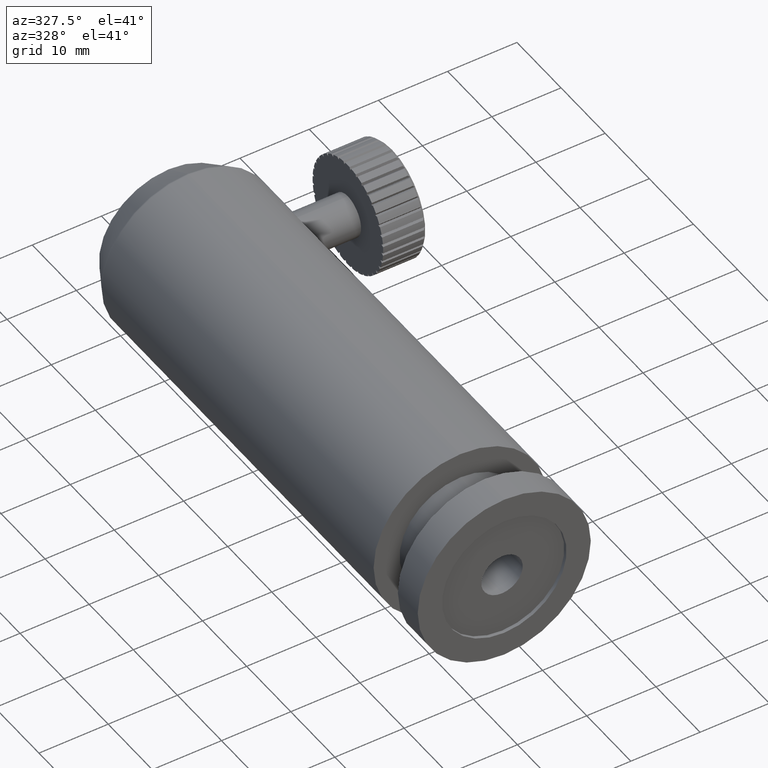
[diagram: clean part render]
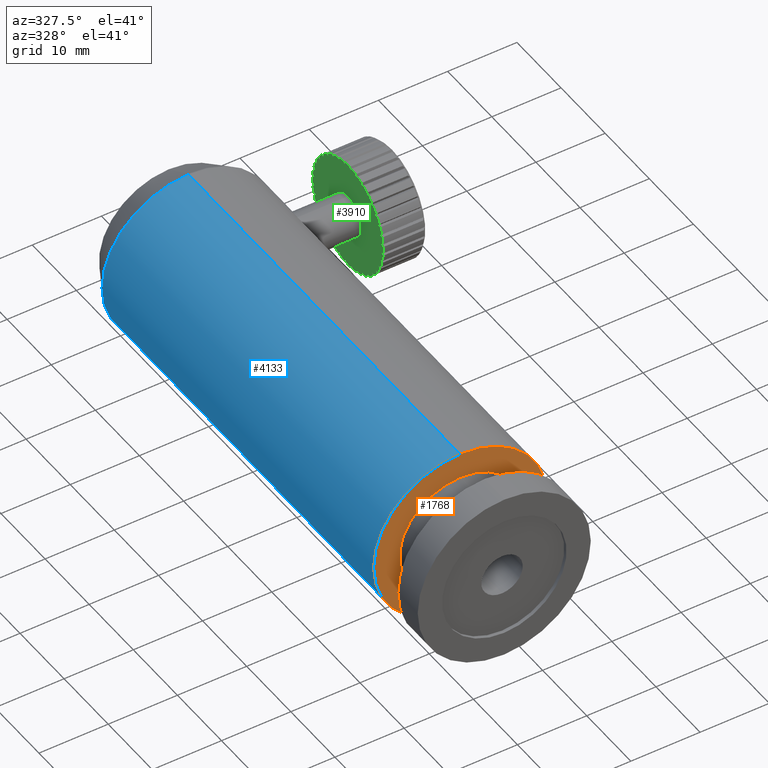
[diagram: same view with three faces highlighted in distinct colors, each labeled with its STEP entity id]
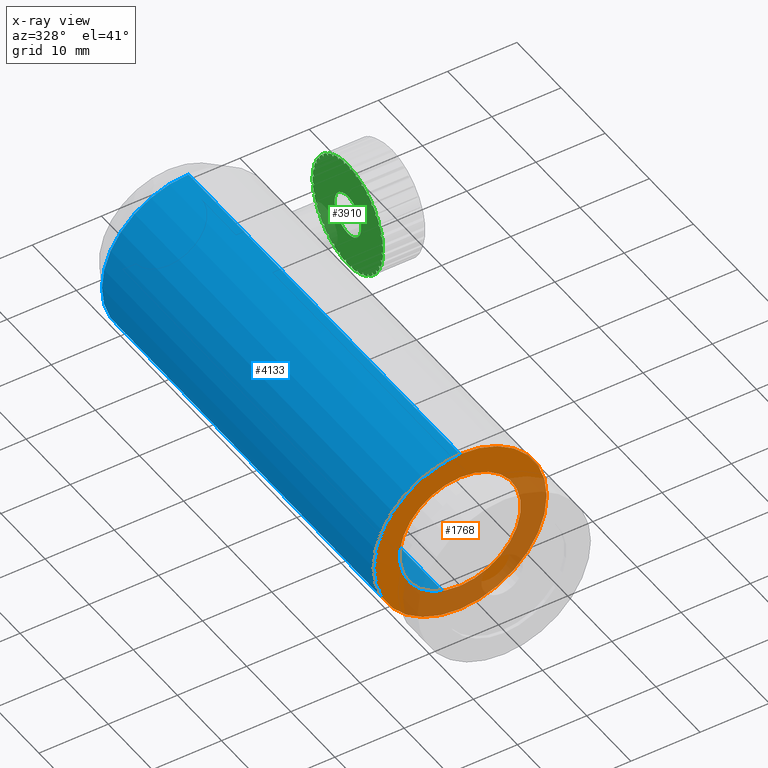
[diagram: x-ray of the same camera — body ghosted, the three highlighted faces saturated]
A machine part, auxiliary view with three faces highlighted in distinct colors.
The next image is the same camera in x-ray (body ghosted, the three faces saturated) — at least one of them is partly hidden behind the body in this view.
Their STEP definitions:

[orange] entity #1768 — the highlighted planar face has unit normal (0, 1, 0).
#162 = CARTESIAN_POINT ( 'NONE',  ( -3.194185020997174700, -6.313612059609847700, -12.50000000000000000 ) ) ;
#249 = EDGE_CURVE ( 'NONE', #4099, #1724, #2969, .T. ) ;
#344 = CARTESIAN_POINT ( 'NONE',  ( -3.194185020997174700, -6.313612059609844200, 0.0000000000000000000 ) ) ;
#405 = CARTESIAN_POINT ( 'NONE',  ( -3.194185020997174700, -6.313612059609844200, 0.0000000000000000000 ) ) ;
#435 = ORIENTED_EDGE ( 'NONE', *, *, #3137, .T. ) ;
#449 = DIRECTION ( 'NONE',  ( 0.0000000000000000000, 0.0000000000000000000, -1.000000000000000000 ) ) ;
#605 = CIRCLE ( 'NONE', #1673, 8.750000000000000000 ) ;
#767 = EDGE_CURVE ( 'NONE', #3660, #982, #3451, .T. ) ;
#954 = CARTESIAN_POINT ( 'NONE',  ( -3.194185020997173400, -6.313612059609847700, 12.50000000000000000 ) ) ;
#982 = VERTEX_POINT ( 'NONE', #162 ) ;
#1032 = DIRECTION ( 'NONE',  ( 0.0000000000000000000, 0.0000000000000000000, -1.000000000000000000 ) ) ;
#1072 = DIRECTION ( 'NONE',  ( -0.0000000000000000000, -1.000000000000000000, -0.0000000000000000000 ) ) ;
#1290 = EDGE_CURVE ( 'NONE', #1724, #4099, #605, .T. ) ;
#1516 = DIRECTION ( 'NONE',  ( 0.0000000000000000000, 0.0000000000000000000, -1.000000000000000000 ) ) ;
#1673 = AXIS2_PLACEMENT_3D ( 'NONE', #405, #1969, #4813 ) ;
#1724 = VERTEX_POINT ( 'NONE', #3160 ) ;
#1768 = ADVANCED_FACE ( 'NONE', ( #5092, #2431 ), #1952, .F. ) ;
#1867 = AXIS2_PLACEMENT_3D ( 'NONE', #3687, #3294, #449 ) ;
#1952 = PLANE ( 'NONE',  #2264 ) ;
#1969 = DIRECTION ( 'NONE',  ( -0.0000000000000000000, -1.000000000000000000, -0.0000000000000000000 ) ) ;
#2264 = AXIS2_PLACEMENT_3D ( 'NONE', #5169, #2760, #5106 ) ;
#2431 = FACE_OUTER_BOUND ( 'NONE', #2435, .T. ) ;
#2435 = EDGE_LOOP ( 'NONE', ( #435, #3785 ) ) ;
#2492 = ORIENTED_EDGE ( 'NONE', *, *, #1290, .F. ) ;
#2704 = CARTESIAN_POINT ( 'NONE',  ( -3.194185020997174700, -6.313612059609847700, 0.0000000000000000000 ) ) ;
#2760 = DIRECTION ( 'NONE',  ( 0.0000000000000000000, 1.000000000000000000, 0.0000000000000000000 ) ) ;
#2969 = CIRCLE ( 'NONE', #4933, 8.750000000000000000 ) ;
#3137 = EDGE_CURVE ( 'NONE', #982, #3660, #3542, .T. ) ;
#3160 = CARTESIAN_POINT ( 'NONE',  ( -3.194185020997173800, -6.313612059609844200, 8.750000000000000000 ) ) ;
#3294 = DIRECTION ( 'NONE',  ( -0.0000000000000000000, -1.000000000000000000, -0.0000000000000000000 ) ) ;
#3298 = DIRECTION ( 'NONE',  ( -0.0000000000000000000, -1.000000000000000000, -0.0000000000000000000 ) ) ;
#3397 = CARTESIAN_POINT ( 'NONE',  ( -3.194185020997174700, -6.313612059609844200, -8.750000000000000000 ) ) ;
#3451 = CIRCLE ( 'NONE', #4246, 12.50000000000000000 ) ;
#3542 = CIRCLE ( 'NONE', #1867, 12.50000000000000000 ) ;
#3660 = VERTEX_POINT ( 'NONE', #954 ) ;
#3687 = CARTESIAN_POINT ( 'NONE',  ( -3.194185020997174700, -6.313612059609847700, 0.0000000000000000000 ) ) ;
#3785 = ORIENTED_EDGE ( 'NONE', *, *, #767, .T. ) ;
#3864 = ORIENTED_EDGE ( 'NONE', *, *, #249, .F. ) ;
#4099 = VERTEX_POINT ( 'NONE', #3397 ) ;
#4246 = AXIS2_PLACEMENT_3D ( 'NONE', #2704, #1072, #1032 ) ;
#4732 = EDGE_LOOP ( 'NONE', ( #3864, #2492 ) ) ;
#4813 = DIRECTION ( 'NONE',  ( 0.0000000000000000000, 0.0000000000000000000, -1.000000000000000000 ) ) ;
#4933 = AXIS2_PLACEMENT_3D ( 'NONE', #344, #3298, #1516 ) ;
#5092 = FACE_BOUND ( 'NONE', #4732, .T. ) ;
#5106 = DIRECTION ( 'NONE',  ( 0.0000000000000000000, -0.0000000000000000000, 1.000000000000000000 ) ) ;
#5169 = CARTESIAN_POINT ( 'NONE',  ( -15.69418502099717500, -6.313612059609846000, 0.0000000000000000000 ) ) ;

[blue] entity #4133 — the highlighted cylindrical surface (partial cylindrical patch) has radius 12.5 mm, axis along (-0, -1, -0).
#64 = DIRECTION ( 'NONE',  ( -0.0000000000000000000, -1.000000000000000000, -0.0000000000000000000 ) ) ;
#162 = CARTESIAN_POINT ( 'NONE',  ( -3.194185020997174700, -6.313612059609847700, -12.50000000000000000 ) ) ;
#174 = DIRECTION ( 'NONE',  ( -0.0000000000000000000, -1.000000000000000000, -0.0000000000000000000 ) ) ;
#381 = EDGE_LOOP ( 'NONE', ( #1067, #3774, #3922, #1546 ) ) ;
#505 = EDGE_CURVE ( 'NONE', #2740, #3660, #744, .T. ) ;
#667 = CARTESIAN_POINT ( 'NONE',  ( -3.194185020997174700, 55.25682492629151500, -12.50000000000000000 ) ) ;
#744 = LINE ( 'NONE', #4611, #3716 ) ;
#767 = EDGE_CURVE ( 'NONE', #3660, #982, #3451, .T. ) ;
#954 = CARTESIAN_POINT ( 'NONE',  ( -3.194185020997173400, -6.313612059609847700, 12.50000000000000000 ) ) ;
#982 = VERTEX_POINT ( 'NONE', #162 ) ;
#1032 = DIRECTION ( 'NONE',  ( 0.0000000000000000000, 0.0000000000000000000, -1.000000000000000000 ) ) ;
#1067 = ORIENTED_EDGE ( 'NONE', *, *, #505, .F. ) ;
#1072 = DIRECTION ( 'NONE',  ( -0.0000000000000000000, -1.000000000000000000, -0.0000000000000000000 ) ) ;
#1546 = ORIENTED_EDGE ( 'NONE', *, *, #767, .F. ) ;
#1639 = CARTESIAN_POINT ( 'NONE',  ( -3.194185020997174700, -24.86122148995913500, -12.50000000000000000 ) ) ;
#1974 = AXIS2_PLACEMENT_3D ( 'NONE', #4154, #174, #3345 ) ;
#2110 = EDGE_CURVE ( 'NONE', #2740, #3768, #4418, .T. ) ;
#2124 = EDGE_CURVE ( 'NONE', #3768, #982, #3547, .T. ) ;
#2426 = CYLINDRICAL_SURFACE ( 'NONE', #1974, 12.50000000000000000 ) ;
#2469 = DIRECTION ( 'NONE',  ( -0.0000000000000000000, -1.000000000000000000, -0.0000000000000000000 ) ) ;
#2567 = AXIS2_PLACEMENT_3D ( 'NONE', #3714, #64, #3681 ) ;
#2589 = CARTESIAN_POINT ( 'NONE',  ( -3.194185020997173400, 55.25682492629151500, 12.50000000000000000 ) ) ;
#2605 = VECTOR ( 'NONE', #2469, 1000.000000000000000 ) ;
#2704 = CARTESIAN_POINT ( 'NONE',  ( -3.194185020997174700, -6.313612059609847700, 0.0000000000000000000 ) ) ;
#2740 = VERTEX_POINT ( 'NONE', #2589 ) ;
#2990 = DIRECTION ( 'NONE',  ( -0.0000000000000000000, -1.000000000000000000, -0.0000000000000000000 ) ) ;
#3345 = DIRECTION ( 'NONE',  ( 0.0000000000000000000, 0.0000000000000000000, -1.000000000000000000 ) ) ;
#3451 = CIRCLE ( 'NONE', #4246, 12.50000000000000000 ) ;
#3547 = LINE ( 'NONE', #1639, #2605 ) ;
#3660 = VERTEX_POINT ( 'NONE', #954 ) ;
#3681 = DIRECTION ( 'NONE',  ( 0.0000000000000000000, 0.0000000000000000000, -1.000000000000000000 ) ) ;
#3714 = CARTESIAN_POINT ( 'NONE',  ( -3.194185020997174700, 55.25682492629151500, 0.0000000000000000000 ) ) ;
#3716 = VECTOR ( 'NONE', #2990, 1000.000000000000000 ) ;
#3768 = VERTEX_POINT ( 'NONE', #667 ) ;
#3774 = ORIENTED_EDGE ( 'NONE', *, *, #2110, .T. ) ;
#3922 = ORIENTED_EDGE ( 'NONE', *, *, #2124, .T. ) ;
#4133 = ADVANCED_FACE ( 'NONE', ( #4191 ), #2426, .T. ) ;
#4154 = CARTESIAN_POINT ( 'NONE',  ( -3.194185020997174700, -24.86122148995913500, 0.0000000000000000000 ) ) ;
#4191 = FACE_OUTER_BOUND ( 'NONE', #381, .T. ) ;
#4246 = AXIS2_PLACEMENT_3D ( 'NONE', #2704, #1072, #1032 ) ;
#4418 = CIRCLE ( 'NONE', #2567, 12.50000000000000000 ) ;
#4611 = CARTESIAN_POINT ( 'NONE',  ( -3.194185020997173400, -24.86122148995913500, 12.50000000000000000 ) ) ;

[green] entity #3910 — the highlighted planar face has unit normal (1, 0, 0).
#13 = DIRECTION ( 'NONE',  ( -0.0000000000000000000, 0.6956611389308715600, -0.7183700855279279200 ) ) ;
#18 = DIRECTION ( 'NONE',  ( 0.0000000000000000000, 0.0000000000000000000, -1.000000000000000000 ) ) ;
#25 = LINE ( 'NONE', #4762, #94 ) ;
#28 = EDGE_CURVE ( 'NONE', #2134, #4640, #3029, .T. ) ;
#29 = VECTOR ( 'NONE', #4551, 1000.000000000000000 ) ;
#30 = VERTEX_POINT ( 'NONE', #1379 ) ;
#33 = DIRECTION ( 'NONE',  ( -0.0000000000000000000, -0.9974657727667654000, -0.07114795962499144400 ) ) ;
#45 = DIRECTION ( 'NONE',  ( -0.0000000000000000000, -0.8994046784339917400, 0.4371169459207087700 ) ) ;
#46 = ORIENTED_EDGE ( 'NONE', *, *, #396, .T. ) ;
#50 = VERTEX_POINT ( 'NONE', #5035 ) ;
#57 = EDGE_CURVE ( 'NONE', #785, #780, #2004, .T. ) ;
#75 = CARTESIAN_POINT ( 'NONE',  ( 16.71632081360403200, 52.13738442499964500, -7.545662044868062200 ) ) ;
#84 = DIRECTION ( 'NONE',  ( -0.0000000000000000000, -0.8994046784339927400, 0.4371169459207068200 ) ) ;
#85 = DIRECTION ( 'NONE',  ( 0.0000000000000000000, 0.0000000000000000000, -1.000000000000000000 ) ) ;
#89 = CARTESIAN_POINT ( 'NONE',  ( 16.71632081360402800, 50.38638794039017200, 0.2603619949927727900 ) ) ;
#94 = VECTOR ( 'NONE', #1555, 1000.000000000000000 ) ;
#96 = CARTESIAN_POINT ( 'NONE',  ( 16.71632081360402800, 45.73884223337533700, 6.771914720818460700 ) ) ;
#97 = EDGE_CURVE ( 'NONE', #3400, #2025, #3158, .T. ) ;
#98 = FACE_OUTER_BOUND ( 'NONE', #133, .T. ) ;
#100 = LINE ( 'NONE', #302, #4771 ) ;
#102 = CARTESIAN_POINT ( 'NONE',  ( 16.71632081360402500, 56.98073454259679900, -4.268941802498173600 ) ) ;
#104 = AXIS2_PLACEMENT_3D ( 'NONE', #2261, #3552, #1916 ) ;
#106 = EDGE_CURVE ( 'NONE', #1405, #1351, #267, .T. ) ;
#113 = VECTOR ( 'NONE', #3061, 1000.000000000000100 ) ;
#120 = ORIENTED_EDGE ( 'NONE', *, *, #3546, .T. ) ;
#128 = CARTESIAN_POINT ( 'NONE',  ( 16.71632081360402800, 52.48475367088240500, 7.616948245496180500 ) ) ;
#129 = ORIENTED_EDGE ( 'NONE', *, *, #3339, .F. ) ;
#133 = EDGE_LOOP ( 'NONE', ( #563, #1282, #129, #3602, #900, #4391, #4074, #2312, #600, #1853, #3254, #1199, #4917, #412, #3085, #5096, #3588, #3127, #3144, #3888, #4596, #4595, #841, #3425, #3899, #2642, #2887, #4131, #3516, #1551, #451, #518, #1387, #5164, #3606, #3966, #1118, #1413, #3438, #2647, #2195, #4913, #4286, #5214, #1039, #3382, #1514, #243, #4984, #3795, #4909, #277, #1489, #3154, #1163, #1828, #3576, #2536, #3478, #1812, #1033, #4102, #4468, #3893, #3013, #120, #2288, #673, #4724, #4980, #3797, #5163, #1333, #380, #5206, #1660, #3792, #809, #4899, #258, #997, #659, #2005, #254, #1232, #3337, #544, #1313, #3208, #4734, #1549, #4779, #3556, #5078, #4841, #482, #727, #1945, #46, #619, #231, #1730, #2894, #3075, #1982, #4600, #4585, #2378, #3832 ) ) ;
#140 = CIRCLE ( 'NONE', #3640, 8.000000000000000000 ) ;
#141 = DIRECTION ( 'NONE',  ( 1.000000000000000000, 0.0000000000000000000, 0.0000000000000000000 ) ) ;
#151 = DIRECTION ( 'NONE',  ( 0.0000000000000000000, 0.0000000000000000000, -1.000000000000000000 ) ) ;
#167 = DIRECTION ( 'NONE',  ( -0.0000000000000000000, -0.8098361393307829100, 0.5866561407109045500 ) ) ;
#177 = EDGE_CURVE ( 'NONE', #1556, #1355, #3990, .T. ) ;
#178 = VECTOR ( 'NONE', #513, 1000.000000000000000 ) ;
#183 = DIRECTION ( 'NONE',  ( -0.0000000000000000000, -0.2432751759757741400, 0.9699573128514245000 ) ) ;
#184 = DIRECTION ( 'NONE',  ( -0.0000000000000000000, -0.9699573128514223900, -0.2432751759757822700 ) ) ;
#204 = LINE ( 'NONE', #5140, #1691 ) ;
#208 = CARTESIAN_POINT ( 'NONE',  ( 16.71632081360402800, 50.38638794039017200, 0.2603619949927727900 ) ) ;
#211 = CARTESIAN_POINT ( 'NONE',  ( 16.71632081360402800, 50.38638794039017200, 3.260361994992770900 ) ) ;
#217 = DIRECTION ( 'NONE',  ( 1.000000000000000000, 0.0000000000000000000, 0.0000000000000000000 ) ) ;
#230 = LINE ( 'NONE', #4934, #1790 ) ;
#231 = ORIENTED_EDGE ( 'NONE', *, *, #3852, .T. ) ;
#238 = LINE ( 'NONE', #2258, #4510 ) ;
#240 = DIRECTION ( 'NONE',  ( 1.000000000000000000, 0.0000000000000000000, 0.0000000000000000000 ) ) ;
#243 = ORIENTED_EDGE ( 'NONE', *, *, #3304, .T. ) ;
#246 = CIRCLE ( 'NONE', #3443, 8.000000000000000000 ) ;
#253 = AXIS2_PLACEMENT_3D ( 'NONE', #3739, #643, #1697 ) ;
#254 = ORIENTED_EDGE ( 'NONE', *, *, #281, .T. ) ;
#258 = ORIENTED_EDGE ( 'NONE', *, *, #1518, .T. ) ;
#265 = DIRECTION ( 'NONE',  ( -0.0000000000000000000, 0.8282567188089966500, 0.5603488268460591300 ) ) ;
#267 = CIRCLE ( 'NONE', #104, 8.000000000000000000 ) ;
#277 = ORIENTED_EDGE ( 'NONE', *, *, #2286, .F. ) ;
#281 = EDGE_CURVE ( 'NONE', #318, #3278, #3093, .T. ) ;
#300 = DIRECTION ( 'NONE',  ( 1.000000000000000000, 0.0000000000000000000, 0.0000000000000000000 ) ) ;
#302 = CARTESIAN_POINT ( 'NONE',  ( 16.71632081360402800, 55.70819565321129100, -5.235169159295923100 ) ) ;
#309 = CIRCLE ( 'NONE', #3243, 8.000000000000000000 ) ;
#311 = EDGE_CURVE ( 'NONE', #1305, #794, #751, .T. ) ;
#316 = CARTESIAN_POINT ( 'NONE',  ( 16.71632081360402800, 44.78079817449621200, -5.447296314375868100 ) ) ;
#318 = VERTEX_POINT ( 'NONE', #840 ) ;
#334 = DIRECTION ( 'NONE',  ( -0.0000000000000000000, -0.9699573128514213900, -0.2432751759757863200 ) ) ;
#337 = VECTOR ( 'NONE', #1090, 1000.000000000000100 ) ;
#351 = CIRCLE ( 'NONE', #4691, 8.000000000000000000 ) ;
#355 = VERTEX_POINT ( 'NONE', #4080 ) ;
#357 = CARTESIAN_POINT ( 'NONE',  ( 16.71632081360402800, 57.60605339157796600, 3.706581775117850300 ) ) ;
#369 = VERTEX_POINT ( 'NONE', #2922 ) ;
#376 = DIRECTION ( 'NONE',  ( -0.0000000000000000000, -0.1031410514763797800, -0.9946667399186255300 ) ) ;
#378 = VERTEX_POINT ( 'NONE', #2168 ) ;
#380 = ORIENTED_EDGE ( 'NONE', *, *, #2100, .T. ) ;
#382 = VECTOR ( 'NONE', #401, 1000.000000000000000 ) ;
#384 = DIRECTION ( 'NONE',  ( 0.0000000000000000000, 0.0000000000000000000, -1.000000000000000000 ) ) ;
#394 = VERTEX_POINT ( 'NONE', #1289 ) ;
#396 = EDGE_CURVE ( 'NONE', #1875, #3787, #4273, .T. ) ;
#401 = DIRECTION ( 'NONE',  ( -0.0000000000000000000, 0.1031410514763800200, 0.9946667399186255300 ) ) ;
#402 = CARTESIAN_POINT ( 'NONE',  ( 16.71632081360403200, 48.24620573130260200, 7.968774290135336900 ) ) ;
#406 = LINE ( 'NONE', #1765, #4569 ) ;
#412 = ORIENTED_EDGE ( 'NONE', *, *, #1932, .T. ) ;
#424 = DIRECTION ( 'NONE',  ( 1.000000000000000000, 0.0000000000000000000, 0.0000000000000000000 ) ) ;
#440 = AXIS2_PLACEMENT_3D ( 'NONE', #2235, #240, #1857 ) ;
#443 = DIRECTION ( 'NONE',  ( -0.0000000000000000000, 0.5866561407108850100, 0.8098361393307972300 ) ) ;
#451 = ORIENTED_EDGE ( 'NONE', *, *, #604, .F. ) ;
#452 = EDGE_CURVE ( 'NONE', #785, #4923, #1547, .T. ) ;
#453 = CARTESIAN_POINT ( 'NONE',  ( 16.71632081360403200, 49.36196895508295100, -7.673777261570733400 ) ) ;
#462 = LINE ( 'NONE', #2486, #2361 ) ;
#469 = CARTESIAN_POINT ( 'NONE',  ( 16.71632081360402800, 50.38638794039017200, 0.2603619949927727900 ) ) ;
#479 = VECTOR ( 'NONE', #4953, 1000.000000000000000 ) ;
#481 = EDGE_CURVE ( 'NONE', #2198, #2372, #3151, .T. ) ;
#482 = ORIENTED_EDGE ( 'NONE', *, *, #1131, .T. ) ;
#485 = CARTESIAN_POINT ( 'NONE',  ( 16.71632081360402800, 57.99558850076766000, -0.5286670488016179700 ) ) ;
#496 = CARTESIAN_POINT ( 'NONE',  ( 16.71632081360402800, 58.32052719695367000, -0.7640569903145374400 ) ) ;
#499 = VECTOR ( 'NONE', #2694, 1000.000000000000000 ) ;
#502 = CARTESIAN_POINT ( 'NONE',  ( 16.71632081360402800, 54.70160387691650100, -6.476025124313037100 ) ) ;
#508 = DIRECTION ( 'NONE',  ( 1.000000000000000000, 0.0000000000000000000, 0.0000000000000000000 ) ) ;
#513 = DIRECTION ( 'NONE',  ( -0.0000000000000000000, 0.6956611389308615700, -0.7183700855279376900 ) ) ;
#516 = CARTESIAN_POINT ( 'NONE',  ( 16.71632081360402800, 50.38638794039017200, 0.2603619949927727900 ) ) ;
#517 = CARTESIAN_POINT ( 'NONE',  ( 16.71632081360402800, 50.93066983152147700, -7.370251166672975500 ) ) ;
#518 = ORIENTED_EDGE ( 'NONE', *, *, #4355, .T. ) ;
#539 = VECTOR ( 'NONE', #3390, 1000.000000000000000 ) ;
#541 = VERTEX_POINT ( 'NONE', #3082 ) ;
#544 = ORIENTED_EDGE ( 'NONE', *, *, #2795, .T. ) ;
#560 = CARTESIAN_POINT ( 'NONE',  ( 16.71632081360402800, 42.75067457701393200, 2.646966577314167500 ) ) ;
#563 = ORIENTED_EDGE ( 'NONE', *, *, #623, .T. ) ;
#573 = EDGE_CURVE ( 'NONE', #4655, #4334, #4722, .T. ) ;
#593 = CARTESIAN_POINT ( 'NONE',  ( 16.71632081360402800, 54.70160387691650100, -6.476025124313038000 ) ) ;
#600 = ORIENTED_EDGE ( 'NONE', *, *, #1627, .F. ) ;
#604 = EDGE_CURVE ( 'NONE', #2446, #1499, #2257, .T. ) ;
#609 = CARTESIAN_POINT ( 'NONE',  ( 16.71632081360402800, 50.38638794039017200, 0.2603619949927727900 ) ) ;
#615 = VERTEX_POINT ( 'NONE', #102 ) ;
#618 = VERTEX_POINT ( 'NONE', #502 ) ;
#619 = ORIENTED_EDGE ( 'NONE', *, *, #5063, .F. ) ;
#623 = EDGE_CURVE ( 'NONE', #5017, #1312, #3977, .T. ) ;
#626 = VECTOR ( 'NONE', #5155, 1000.000000000000000 ) ;
#639 = AXIS2_PLACEMENT_3D ( 'NONE', #516, #141, #2532 ) ;
#643 = DIRECTION ( 'NONE',  ( 1.000000000000000000, 0.0000000000000000000, 0.0000000000000000000 ) ) ;
#650 = CARTESIAN_POINT ( 'NONE',  ( 16.71632081360402800, 48.63539145578074900, 8.066386034853618300 ) ) ;
#652 = DIRECTION ( 'NONE',  ( -0.0000000000000000000, -0.4080105992077208100, 0.9129771908071726600 ) ) ;
#653 = VERTEX_POINT ( 'NONE', #1047 ) ;
#659 = ORIENTED_EDGE ( 'NONE', *, *, #3541, .F. ) ;
#673 = ORIENTED_EDGE ( 'NONE', *, *, #3461, .T. ) ;
#680 = VERTEX_POINT ( 'NONE', #901 ) ;
#687 = VERTEX_POINT ( 'NONE', #3501 ) ;
#690 = CARTESIAN_POINT ( 'NONE',  ( 16.71632081360402800, 56.27110481915699600, 5.679781452532192400 ) ) ;
#691 = EDGE_CURVE ( 'NONE', #1063, #723, #802, .T. ) ;
#695 = CARTESIAN_POINT ( 'NONE',  ( 16.71632081360402800, 42.39489759708191500, -0.1085310692016508700 ) ) ;
#698 = VECTOR ( 'NONE', #2203, 1000.000000000000100 ) ;
#714 = CIRCLE ( 'NONE', #2256, 2.999999999999997800 ) ;
#719 = DIRECTION ( 'NONE',  ( 1.000000000000000000, 0.0000000000000000000, 0.0000000000000000000 ) ) ;
#722 = VECTOR ( 'NONE', #1703, 1000.000000000000100 ) ;
#723 = VERTEX_POINT ( 'NONE', #2683 ) ;
#727 = ORIENTED_EDGE ( 'NONE', *, *, #2050, .F. ) ;
#731 = EDGE_CURVE ( 'NONE', #653, #4460, #4091, .T. ) ;
#733 = LINE ( 'NONE', #2966, #479 ) ;
#736 = AXIS2_PLACEMENT_3D ( 'NONE', #2535, #3342, #939 ) ;
#740 = CARTESIAN_POINT ( 'NONE',  ( 16.71632081360402800, 46.71011353360831500, -6.844918188507429900 ) ) ;
#743 = DIRECTION ( 'NONE',  ( 0.0000000000000000000, 0.0000000000000000000, -1.000000000000000000 ) ) ;
#750 = LINE ( 'NONE', #1677, #3863 ) ;
#751 = LINE ( 'NONE', #5190, #2786 ) ;
#758 = DIRECTION ( 'NONE',  ( -0.0000000000000000000, 0.5866561407108988900, 0.8098361393307870200 ) ) ;
#761 = DIRECTION ( 'NONE',  ( 1.000000000000000000, 0.0000000000000000000, 0.0000000000000000000 ) ) ;
#765 = VECTOR ( 'NONE', #4173, 1000.000000000000100 ) ;
#769 = AXIS2_PLACEMENT_3D ( 'NONE', #3680, #4530, #1682 ) ;
#770 = EDGE_CURVE ( 'NONE', #2636, #2817, #3140, .T. ) ;
#780 = VERTEX_POINT ( 'NONE', #2680 ) ;
#785 = VERTEX_POINT ( 'NONE', #1024 ) ;
#792 = AXIS2_PLACEMENT_3D ( 'NONE', #3405, #5010, #987 ) ;
#794 = VERTEX_POINT ( 'NONE', #3472 ) ;
#798 = LINE ( 'NONE', #3268, #178 ) ;
#802 = LINE ( 'NONE', #4686, #3328 ) ;
#805 = EDGE_CURVE ( 'NONE', #931, #794, #4332, .T. ) ;
#809 = ORIENTED_EDGE ( 'NONE', *, *, #2047, .T. ) ;
#813 = DIRECTION ( 'NONE',  ( 1.000000000000000000, 0.0000000000000000000, 0.0000000000000000000 ) ) ;
#820 = LINE ( 'NONE', #5034, #2846 ) ;
#821 = VECTOR ( 'NONE', #2634, 1000.000000000000000 ) ;
#823 = CARTESIAN_POINT ( 'NONE',  ( 16.71632081360402800, 46.07117200386385700, 6.996749114298583400 ) ) ;
#831 = EDGE_CURVE ( 'NONE', #5053, #4704, #4907, .T. ) ;
#833 = CARTESIAN_POINT ( 'NONE',  ( 16.71632081360402800, 54.06266234717207900, 7.365642178492949600 ) ) ;
#840 = CARTESIAN_POINT ( 'NONE',  ( 16.71632081360403200, 57.37066345006504500, 3.381643078931833500 ) ) ;
#841 = ORIENTED_EDGE ( 'NONE', *, *, #1307, .T. ) ;
#848 = CIRCLE ( 'NONE', #2012, 8.000000000000000000 ) ;
#855 = LINE ( 'NONE', #1987, #3906 ) ;
#862 = EDGE_CURVE ( 'NONE', #3320, #3441, #2122, .T. ) ;
#863 = VECTOR ( 'NONE', #3835, 1000.000000000000100 ) ;
#871 = EDGE_CURVE ( 'NONE', #2382, #687, #246, .T. ) ;
#880 = DIRECTION ( 'NONE',  ( 1.000000000000000000, 0.0000000000000000000, 0.0000000000000000000 ) ) ;
#881 = VECTOR ( 'NONE', #334, 1000.000000000000100 ) ;
#898 = CARTESIAN_POINT ( 'NONE',  ( 16.71632081360402800, 54.67305646576250000, -6.075801903896066700 ) ) ;
#900 = ORIENTED_EDGE ( 'NONE', *, *, #3574, .T. ) ;
#901 = CARTESIAN_POINT ( 'NONE',  ( 16.71632081360402800, 45.53214544671327200, -6.098594665700984400 ) ) ;
#904 = EDGE_CURVE ( 'NONE', #984, #5054, #995, .T. ) ;
#907 = VERTEX_POINT ( 'NONE', #2130 ) ;
#914 = DIRECTION ( 'NONE',  ( -0.0000000000000000000, -0.1031410514763795700, -0.9946667399186255300 ) ) ;
#915 = DIRECTION ( 'NONE',  ( 1.000000000000000000, 0.0000000000000000000, 0.0000000000000000000 ) ) ;
#931 = VERTEX_POINT ( 'NONE', #4189 ) ;
#937 = AXIS2_PLACEMENT_3D ( 'NONE', #5040, #3413, #2174 ) ;
#938 = VERTEX_POINT ( 'NONE', #560 ) ;
#939 = DIRECTION ( 'NONE',  ( 0.0000000000000000000, 0.0000000000000000000, -1.000000000000000000 ) ) ;
#955 = DIRECTION ( 'NONE',  ( -0.0000000000000000000, 0.1031410514763971300, 0.9946667399186237500 ) ) ;
#957 = DIRECTION ( 'NONE',  ( -0.0000000000000000000, -0.4371169459206930000, -0.8994046784339995200 ) ) ;
#960 = DIRECTION ( 'NONE',  ( 0.0000000000000000000, 0.0000000000000000000, -1.000000000000000000 ) ) ;
#964 = AXIS2_PLACEMENT_3D ( 'NONE', #3653, #4447, #4009 ) ;
#967 = CARTESIAN_POINT ( 'NONE',  ( 16.71632081360402800, 44.89085678610153700, -5.061445717828400200 ) ) ;
#968 = DIRECTION ( 'NONE',  ( 0.0000000000000000000, 0.0000000000000000000, -1.000000000000000000 ) ) ;
#974 = EDGE_CURVE ( 'NONE', #369, #5088, #733, .T. ) ;
#981 = CARTESIAN_POINT ( 'NONE',  ( 16.71632081360402800, 44.96696848285073100, 6.145078873759577400 ) ) ;
#984 = VERTEX_POINT ( 'NONE', #2552 ) ;
#987 = DIRECTION ( 'NONE',  ( 0.0000000000000000000, 0.0000000000000000000, -1.000000000000000000 ) ) ;
#995 = LINE ( 'NONE', #1389, #863 ) ;
#997 = ORIENTED_EDGE ( 'NONE', *, *, #2027, .T. ) ;
#1003 = VERTEX_POINT ( 'NONE', #1360 ) ;
#1017 = AXIS2_PLACEMENT_3D ( 'NONE', #1837, #3853, #4673 ) ;
#1019 = EDGE_CURVE ( 'NONE', #2184, #4399, #4646, .T. ) ;
#1021 = LINE ( 'NONE', #3554, #499 ) ;
#1023 = VECTOR ( 'NONE', #914, 1000.000000000000100 ) ;
#1024 = CARTESIAN_POINT ( 'NONE',  ( 16.71632081360402800, 45.85708414289929600, -6.333984607213901400 ) ) ;
#1030 = EDGE_CURVE ( 'NONE', #369, #1925, #1543, .T. ) ;
#1033 = ORIENTED_EDGE ( 'NONE', *, *, #2009, .F. ) ;
#1035 = CARTESIAN_POINT ( 'NONE',  ( 16.71632081360402800, 56.58163440627065200, -4.227557481445659300 ) ) ;
#1038 = VECTOR ( 'NONE', #4230, 1000.000000000000100 ) ;
#1039 = ORIENTED_EDGE ( 'NONE', *, *, #1364, .T. ) ;
#1047 = CARTESIAN_POINT ( 'NONE',  ( 16.71632081360403200, 50.93066983152147700, -7.370251166672976400 ) ) ;
#1063 = VERTEX_POINT ( 'NONE', #2528 ) ;
#1066 = AXIS2_PLACEMENT_3D ( 'NONE', #2274, #3088, #1878 ) ;
#1075 = AXIS2_PLACEMENT_3D ( 'NONE', #4061, #1621, #2878 ) ;
#1078 = LINE ( 'NONE', #3844, #4613 ) ;
#1083 = CARTESIAN_POINT ( 'NONE',  ( 16.71632081360402800, 50.75528100458462400, -7.731128348315489300 ) ) ;
#1090 = DIRECTION ( 'NONE',  ( -0.0000000000000000000, 0.2432751759757736100, -0.9699573128514246100 ) ) ;
#1093 = VECTOR ( 'NONE', #4423, 1000.000000000000000 ) ;
#1094 = LINE ( 'NONE', #823, #2176 ) ;
#1104 = CARTESIAN_POINT ( 'NONE',  ( 16.71632081360402800, 47.30649117750360200, 7.643737640993781400 ) ) ;
#1105 = EDGE_CURVE ( 'NONE', #931, #1159, #2318, .T. ) ;
#1112 = VECTOR ( 'NONE', #4256, 1000.000000000000100 ) ;
#1115 = DIRECTION ( 'NONE',  ( 0.0000000000000000000, 0.0000000000000000000, -1.000000000000000000 ) ) ;
#1118 = ORIENTED_EDGE ( 'NONE', *, *, #2800, .F. ) ;
#1131 = EDGE_CURVE ( 'NONE', #541, #2330, #798, .T. ) ;
#1146 = VERTEX_POINT ( 'NONE', #4083 ) ;
#1151 = LINE ( 'NONE', #898, #5023 ) ;
#1154 = DIRECTION ( 'NONE',  ( -0.0000000000000000000, 0.9129771908071689900, 0.4080105992077290900 ) ) ;
#1159 = VERTEX_POINT ( 'NONE', #4100 ) ;
#1163 = ORIENTED_EDGE ( 'NONE', *, *, #106, .F. ) ;
#1168 = AXIS2_PLACEMENT_3D ( 'NONE', #2279, #300, #1832 ) ;
#1172 = DIRECTION ( 'NONE',  ( -0.0000000000000000000, -0.8282567188089915400, -0.5603488268460664600 ) ) ;
#1174 = DIRECTION ( 'NONE',  ( -0.0000000000000000000, 0.8282567188089926500, 0.5603488268460650200 ) ) ;
#1191 = DIRECTION ( 'NONE',  ( 0.0000000000000000000, 0.0000000000000000000, -1.000000000000000000 ) ) ;
#1193 = VERTEX_POINT ( 'NONE', #4582 ) ;
#1199 = ORIENTED_EDGE ( 'NONE', *, *, #2933, .T. ) ;
#1215 = VECTOR ( 'NONE', #3753, 1000.000000000000000 ) ;
#1222 = DIRECTION ( 'NONE',  ( -0.0000000000000000000, 0.4371169459206896100, 0.8994046784340011800 ) ) ;
#1223 = CARTESIAN_POINT ( 'NONE',  ( 16.71632081360402800, 46.07117200386385000, 6.996749114298584300 ) ) ;
#1232 = ORIENTED_EDGE ( 'NONE', *, *, #2197, .F. ) ;
#1236 = DIRECTION ( 'NONE',  ( -0.0000000000000000000, -0.07114795962497716400, 0.9974657727667665100 ) ) ;
#1247 = CARTESIAN_POINT ( 'NONE',  ( 16.71632081360402800, 45.53214544671327200, -6.098594665700982600 ) ) ;
#1249 = CIRCLE ( 'NONE', #5095, 8.000000000000000000 ) ;
#1253 = CARTESIAN_POINT ( 'NONE',  ( 16.71632081360402800, 50.38638794039017200, 0.2603619949927727900 ) ) ;
#1273 = VECTOR ( 'NONE', #13, 1000.000000000000100 ) ;
#1281 = EDGE_CURVE ( 'NONE', #2727, #4783, #5098, .T. ) ;
#1282 = ORIENTED_EDGE ( 'NONE', *, *, #1833, .T. ) ;
#1289 = CARTESIAN_POINT ( 'NONE',  ( 16.71632081360402800, 42.45224868382667400, 1.284780980300030500 ) ) ;
#1301 = CARTESIAN_POINT ( 'NONE',  ( 16.71632081360402800, 49.84210604925894500, 7.890975156658524400 ) ) ;
#1304 = VERTEX_POINT ( 'NONE', #3625 ) ;
#1305 = VERTEX_POINT ( 'NONE', #4036 ) ;
#1307 = EDGE_CURVE ( 'NONE', #1747, #1556, #855, .T. ) ;
#1312 = VERTEX_POINT ( 'NONE', #4054 ) ;
#1313 = ORIENTED_EDGE ( 'NONE', *, *, #2624, .F. ) ;
#1319 = CARTESIAN_POINT ( 'NONE',  ( 16.71632081360402800, 44.96696848285072400, 6.145078873759577400 ) ) ;
#1332 = CARTESIAN_POINT ( 'NONE',  ( 16.71632081360402800, 42.45224868382667400, 1.284780980300030500 ) ) ;
#1333 = ORIENTED_EDGE ( 'NONE', *, *, #1669, .F. ) ;
#1334 = DIRECTION ( 'NONE',  ( 1.000000000000000000, 0.0000000000000000000, 0.0000000000000000000 ) ) ;
#1335 = CARTESIAN_POINT ( 'NONE',  ( 16.71632081360402800, 52.77299252271160400, 7.896075358369007100 ) ) ;
#1337 = DIRECTION ( 'NONE',  ( -0.0000000000000000000, 0.9616452615037139900, -0.2742961739205516700 ) ) ;
#1349 = LINE ( 'NONE', #2478, #2305 ) ;
#1351 = VERTEX_POINT ( 'NONE', #1223 ) ;
#1355 = VERTEX_POINT ( 'NONE', #3595 ) ;
#1359 = LINE ( 'NONE', #3289, #3775 ) ;
#1360 = CARTESIAN_POINT ( 'NONE',  ( 16.71632081360402800, 55.88191909467885000, 5.582169707813911000 ) ) ;
#1362 = VERTEX_POINT ( 'NONE', #2450 ) ;
#1364 = EDGE_CURVE ( 'NONE', #2817, #3907, #3012, .T. ) ;
#1379 = CARTESIAN_POINT ( 'NONE',  ( 16.71632081360402500, 58.09480023553274500, 2.400544204080314400 ) ) ;
#1384 = EDGE_CURVE ( 'NONE', #1475, #4845, #309, .T. ) ;
#1387 = ORIENTED_EDGE ( 'NONE', *, *, #3293, .T. ) ;
#1388 = EDGE_CURVE ( 'NONE', #3729, #2372, #4087, .T. ) ;
#1389 = CARTESIAN_POINT ( 'NONE',  ( 16.71632081360402800, 57.99558850076766000, -0.5286670488016181900 ) ) ;
#1391 = DIRECTION ( 'NONE',  ( 1.000000000000000000, 0.0000000000000000000, 0.0000000000000000000 ) ) ;
#1399 = LINE ( 'NONE', #3772, #4703 ) ;
#1400 = LINE ( 'NONE', #4522, #3956 ) ;
#1405 = VERTEX_POINT ( 'NONE', #1986 ) ;
#1408 = DIRECTION ( 'NONE',  ( 0.0000000000000000000, 0.0000000000000000000, -1.000000000000000000 ) ) ;
#1413 = ORIENTED_EDGE ( 'NONE', *, *, #1281, .T. ) ;
#1417 = CARTESIAN_POINT ( 'NONE',  ( 16.71632081360402800, 42.96621449707679800, -1.600693101221995400 ) ) ;
#1423 = EDGE_CURVE ( 'NONE', #3400, #394, #4716, .T. ) ;
#1430 = AXIS2_PLACEMENT_3D ( 'NONE', #4220, #915, #960 ) ;
#1445 = CARTESIAN_POINT ( 'NONE',  ( 16.71632081360402800, 50.38638794039017200, 0.2603619949927727900 ) ) ;
#1449 = CARTESIAN_POINT ( 'NONE',  ( 16.71632081360403200, 48.28802220989798900, -7.096224255510651200 ) ) ;
#1475 = VERTEX_POINT ( 'NONE', #402 ) ;
#1476 = DIRECTION ( 'NONE',  ( -0.0000000000000000000, -0.9974657727667644000, -0.07114795962500541900 ) ) ;
#1481 = CARTESIAN_POINT ( 'NONE',  ( 16.71632081360402800, 43.50594215037011000, 3.604306631286144000 ) ) ;
#1489 = ORIENTED_EDGE ( 'NONE', *, *, #3582, .T. ) ;
#1497 = AXIS2_PLACEMENT_3D ( 'NONE', #3149, #719, #18 ) ;
#1499 = VERTEX_POINT ( 'NONE', #2079 ) ;
#1512 = VECTOR ( 'NONE', #1172, 1000.000000000000200 ) ;
#1514 = ORIENTED_EDGE ( 'NONE', *, *, #3503, .T. ) ;
#1518 = EDGE_CURVE ( 'NONE', #4990, #1596, #1349, .T. ) ;
#1519 = CARTESIAN_POINT ( 'NONE',  ( 16.71632081360402800, 50.38638794039017200, 0.2603619949927727900 ) ) ;
#1525 = CIRCLE ( 'NONE', #1430, 8.000000000000000000 ) ;
#1539 = DIRECTION ( 'NONE',  ( 0.0000000000000000000, 0.0000000000000000000, -1.000000000000000000 ) ) ;
#1543 = CIRCLE ( 'NONE', #253, 8.000000000000000000 ) ;
#1547 = LINE ( 'NONE', #2109, #2129 ) ;
#1549 = ORIENTED_EDGE ( 'NONE', *, *, #3994, .F. ) ;
#1551 = ORIENTED_EDGE ( 'NONE', *, *, #2897, .T. ) ;
#1553 = EDGE_CURVE ( 'NONE', #1670, #2626, #3510, .T. ) ;
#1555 = DIRECTION ( 'NONE',  ( -0.0000000000000000000, -0.6956611389308683400, 0.7183700855279311300 ) ) ;
#1556 = VERTEX_POINT ( 'NONE', #967 ) ;
#1557 = CARTESIAN_POINT ( 'NONE',  ( 16.71632081360402800, 43.40211243071532700, -2.860919088946334300 ) ) ;
#1573 = CARTESIAN_POINT ( 'NONE',  ( 16.71632081360402800, 56.74534460108387900, -4.593880498684191200 ) ) ;
#1576 = CARTESIAN_POINT ( 'NONE',  ( 16.71632081360402800, 50.38638794039017200, 0.2603619949927727900 ) ) ;
#1578 = CARTESIAN_POINT ( 'NONE',  ( 16.71632081360402800, 50.38638794039017200, 0.2603619949927727900 ) ) ;
#1596 = VERTEX_POINT ( 'NONE', #2590 ) ;
#1606 = CARTESIAN_POINT ( 'NONE',  ( 16.71632081360402800, 42.75577477872442200, -0.2839198961384929400 ) ) ;
#1619 = VERTEX_POINT ( 'NONE', #5037 ) ;
#1621 = DIRECTION ( 'NONE',  ( 1.000000000000000000, 0.0000000000000000000, 0.0000000000000000000 ) ) ;
#1624 = DIRECTION ( 'NONE',  ( -0.0000000000000000000, -0.5603488268460670200, 0.8282567188089913200 ) ) ;
#1627 = EDGE_CURVE ( 'NONE', #1925, #4460, #2499, .T. ) ;
#1644 = DIRECTION ( 'NONE',  ( 1.000000000000000000, 0.0000000000000000000, 0.0000000000000000000 ) ) ;
#1646 = FACE_BOUND ( 'NONE', #4955, .T. ) ;
#1660 = ORIENTED_EDGE ( 'NONE', *, *, #3722, .F. ) ;
#1664 = VERTEX_POINT ( 'NONE', #1786 ) ;
#1665 = AXIS2_PLACEMENT_3D ( 'NONE', #2225, #2604, #968 ) ;
#1669 = EDGE_CURVE ( 'NONE', #2323, #4037, #3128, .T. ) ;
#1670 = VERTEX_POINT ( 'NONE', #2673 ) ;
#1677 = CARTESIAN_POINT ( 'NONE',  ( 16.71632081360402800, 57.26683373041021200, -3.083582641300645300 ) ) ;
#1682 = DIRECTION ( 'NONE',  ( 0.0000000000000000000, 0.0000000000000000000, -1.000000000000000000 ) ) ;
#1688 = CARTESIAN_POINT ( 'NONE',  ( 16.71632081360402800, 43.28110775688998000, 3.936636401774658900 ) ) ;
#1691 = VECTOR ( 'NONE', #2718, 1000.000000000000100 ) ;
#1693 = CARTESIAN_POINT ( 'NONE',  ( 16.71632081360402800, 49.59735889659586400, -7.348838565384716600 ) ) ;
#1696 = DIRECTION ( 'NONE',  ( -0.0000000000000000000, 0.5603488268460535800, -0.8282567188090003100 ) ) ;
#1697 = DIRECTION ( 'NONE',  ( 0.0000000000000000000, 0.0000000000000000000, -1.000000000000000000 ) ) ;
#1700 = EDGE_CURVE ( 'NONE', #723, #4037, #238, .T. ) ;
#1702 = DIRECTION ( 'NONE',  ( -0.0000000000000000000, 0.07114795962499467800, -0.9974657727667651800 ) ) ;
#1703 = DIRECTION ( 'NONE',  ( -0.0000000000000000000, 0.5603488268460670200, -0.8282567188089913200 ) ) ;
#1717 = DIRECTION ( 'NONE',  ( 0.0000000000000000000, 0.0000000000000000000, -1.000000000000000000 ) ) ;
#1727 = CARTESIAN_POINT ( 'NONE',  ( 16.71632081360403200, 47.26510685645109100, 7.244637504667635700 ) ) ;
#1730 = ORIENTED_EDGE ( 'NONE', *, *, #3406, .T. ) ;
#1737 = DIRECTION ( 'NONE',  ( 0.0000000000000000000, 0.0000000000000000000, -1.000000000000000000 ) ) ;
#1747 = VERTEX_POINT ( 'NONE', #316 ) ;
#1759 = CARTESIAN_POINT ( 'NONE',  ( 16.71632081360402800, 43.40211243071532700, -2.860919088946333400 ) ) ;
#1762 = CARTESIAN_POINT ( 'NONE',  ( 16.71632081360402800, 47.26510685645109100, 7.244637504667636600 ) ) ;
#1765 = CARTESIAN_POINT ( 'NONE',  ( 16.71632081360402800, 57.74297419089358400, -1.838003735499489800 ) ) ;
#1767 = VERTEX_POINT ( 'NONE', #690 ) ;
#1782 = VECTOR ( 'NONE', #4271, 1000.000000000000100 ) ;
#1786 = CARTESIAN_POINT ( 'NONE',  ( 16.71632081360402800, 58.37787828369844300, 0.6292550591871436400 ) ) ;
#1790 = VECTOR ( 'NONE', #84, 1000.000000000000200 ) ;
#1809 = CARTESIAN_POINT ( 'NONE',  ( 16.71632081360403200, 43.50594215037011000, 3.604306631286144000 ) ) ;
#1811 = CARTESIAN_POINT ( 'NONE',  ( 16.71632081360402800, 50.38638794039017200, 0.2603619949927727900 ) ) ;
#1812 = ORIENTED_EDGE ( 'NONE', *, *, #831, .T. ) ;
#1818 = VECTOR ( 'NONE', #4927, 1000.000000000000000 ) ;
#1824 = LINE ( 'NONE', #4122, #3164 ) ;
#1828 = ORIENTED_EDGE ( 'NONE', *, *, #4053, .T. ) ;
#1832 = DIRECTION ( 'NONE',  ( 0.0000000000000000000, 0.0000000000000000000, -1.000000000000000000 ) ) ;
#1833 = EDGE_CURVE ( 'NONE', #1312, #2434, #1922, .T. ) ;
#1837 = CARTESIAN_POINT ( 'NONE',  ( 16.71632081360402800, 50.38638794039017200, 0.2603619949927727900 ) ) ;
#1850 = LINE ( 'NONE', #1762, #1215 ) ;
#1852 = DIRECTION ( 'NONE',  ( 0.0000000000000000000, 0.0000000000000000000, -1.000000000000000000 ) ) ;
#1853 = ORIENTED_EDGE ( 'NONE', *, *, #1030, .F. ) ;
#1857 = DIRECTION ( 'NONE',  ( 0.0000000000000000000, 0.0000000000000000000, -1.000000000000000000 ) ) ;
#1864 = CARTESIAN_POINT ( 'NONE',  ( 16.71632081360402800, 50.38638794039017200, 0.2603619949927727900 ) ) ;
#1875 = VERTEX_POINT ( 'NONE', #3897 ) ;
#1878 = DIRECTION ( 'NONE',  ( 0.0000000000000000000, 0.0000000000000000000, -1.000000000000000000 ) ) ;
#1880 = AXIS2_PLACEMENT_3D ( 'NONE', #4175, #508, #3329 ) ;
#1881 = DIRECTION ( 'NONE',  ( -0.0000000000000000000, -0.9946667399186255300, 0.1031410514763797700 ) ) ;
#1897 = CARTESIAN_POINT ( 'NONE',  ( 16.71632081360402800, 50.38638794039017200, 0.2603619949927727900 ) ) ;
#1898 = DIRECTION ( 'NONE',  ( -0.0000000000000000000, -0.5866561407109097700, -0.8098361393307792500 ) ) ;
#1900 = CARTESIAN_POINT ( 'NONE',  ( 16.71632081360403200, 44.19114147450966400, 4.748281471431163000 ) ) ;
#1908 = CARTESIAN_POINT ( 'NONE',  ( 16.71632081360402800, 50.38638794039017200, 0.2603619949927727900 ) ) ;
#1916 = DIRECTION ( 'NONE',  ( 0.0000000000000000000, 0.0000000000000000000, -1.000000000000000000 ) ) ;
#1922 = LINE ( 'NONE', #5199, #3833 ) ;
#1925 = VERTEX_POINT ( 'NONE', #1936 ) ;
#1932 = EDGE_CURVE ( 'NONE', #2503, #2855, #4634, .T. ) ;
#1936 = CARTESIAN_POINT ( 'NONE',  ( 16.71632081360402800, 50.38638794039017200, -7.739638005007227800 ) ) ;
#1945 = ORIENTED_EDGE ( 'NONE', *, *, #3587, .T. ) ;
#1946 = LINE ( 'NONE', #4789, #3993 ) ;
#1950 = EDGE_CURVE ( 'NONE', #2503, #2519, #848, .T. ) ;
#1958 = VECTOR ( 'NONE', #3178, 1000.000000000000100 ) ;
#1959 = DIRECTION ( 'NONE',  ( 1.000000000000000000, 0.0000000000000000000, 0.0000000000000000000 ) ) ;
#1972 = CIRCLE ( 'NONE', #4658, 8.000000000000000000 ) ;
#1981 = EDGE_CURVE ( 'NONE', #3274, #1362, #100, .T. ) ;
#1982 = ORIENTED_EDGE ( 'NONE', *, *, #2355, .T. ) ;
#1986 = CARTESIAN_POINT ( 'NONE',  ( 16.71632081360402800, 46.94016816026506700, 7.480027446180556300 ) ) ;
#1987 = CARTESIAN_POINT ( 'NONE',  ( 16.71632081360402800, 44.89085678610153000, -5.061445717828401100 ) ) ;
#1991 = VECTOR ( 'NONE', #3286, 1000.000000000000100 ) ;
#2004 = CIRCLE ( 'NONE', #1066, 8.000000000000000000 ) ;
#2005 = ORIENTED_EDGE ( 'NONE', *, *, #3277, .T. ) ;
#2009 = EDGE_CURVE ( 'NONE', #2698, #4704, #3571, .T. ) ;
#2012 = AXIS2_PLACEMENT_3D ( 'NONE', #1864, #2695, #4306 ) ;
#2014 = EDGE_CURVE ( 'NONE', #1619, #3344, #230, .T. ) ;
#2015 = CIRCLE ( 'NONE', #3074, 8.000000000000000000 ) ;
#2025 = VERTEX_POINT ( 'NONE', #3735 ) ;
#2027 = EDGE_CURVE ( 'NONE', #1596, #378, #1359, .T. ) ;
#2041 = VERTEX_POINT ( 'NONE', #96 ) ;
#2047 = EDGE_CURVE ( 'NONE', #1003, #1767, #4588, .T. ) ;
#2050 = EDGE_CURVE ( 'NONE', #1146, #2330, #3704, .T. ) ;
#2062 = VERTEX_POINT ( 'NONE', #3319 ) ;
#2074 = VERTEX_POINT ( 'NONE', #496 ) ;
#2079 = CARTESIAN_POINT ( 'NONE',  ( 16.71632081360403200, 43.00301229438917300, -2.819534767893824100 ) ) ;
#2091 = CARTESIAN_POINT ( 'NONE',  ( 16.71632081360402800, 53.83260772051532700, -6.959303456194986000 ) ) ;
#2093 = CARTESIAN_POINT ( 'NONE',  ( 16.71632081360402800, 46.09971941501784400, 6.596525893881614700 ) ) ;
#2100 = EDGE_CURVE ( 'NONE', #2323, #2384, #4545, .T. ) ;
#2109 = CARTESIAN_POINT ( 'NONE',  ( 16.71632081360402800, 45.89846846395181500, -5.934884470887754800 ) ) ;
#2117 = DIRECTION ( 'NONE',  ( -0.0000000000000000000, 0.9699573128514223900, 0.2432751759757822400 ) ) ;
#2122 = CIRCLE ( 'NONE', #3174, 8.000000000000000000 ) ;
#2129 = VECTOR ( 'NONE', #955, 1000.000000000000100 ) ;
#2130 = CARTESIAN_POINT ( 'NONE',  ( 16.71632081360402800, 58.01700110205592200, 0.8046438861239849600 ) ) ;
#2134 = VERTEX_POINT ( 'NONE', #211 ) ;
#2140 = CARTESIAN_POINT ( 'NONE',  ( 16.71632081360402800, 56.27110481915699600, 5.679781452532191500 ) ) ;
#2148 = CARTESIAN_POINT ( 'NONE',  ( 16.71632081360402800, 58.32052719695367000, -0.7640569903145386600 ) ) ;
#2156 = CARTESIAN_POINT ( 'NONE',  ( 16.71632081360402800, 47.07099071525082200, -7.020307015444268800 ) ) ;
#2162 = AXIS2_PLACEMENT_3D ( 'NONE', #3233, #761, #1191 ) ;
#2168 = CARTESIAN_POINT ( 'NONE',  ( 16.71632081360402800, 57.12277505969596800, 4.575577931519120500 ) ) ;
#2174 = DIRECTION ( 'NONE',  ( 0.0000000000000000000, 0.0000000000000000000, -1.000000000000000000 ) ) ;
#2176 = VECTOR ( 'NONE', #1236, 1000.000000000000000 ) ;
#2179 = LINE ( 'NONE', #517, #29 ) ;
#2184 = VERTEX_POINT ( 'NONE', #4586 ) ;
#2188 = EDGE_CURVE ( 'NONE', #907, #1664, #1078, .T. ) ;
#2195 = ORIENTED_EDGE ( 'NONE', *, *, #97, .T. ) ;
#2197 = EDGE_CURVE ( 'NONE', #30, #3278, #2538, .T. ) ;
#2198 = VERTEX_POINT ( 'NONE', #4198 ) ;
#2203 = DIRECTION ( 'NONE',  ( -0.0000000000000000000, -0.07114795962499481700, 0.9974657727667651800 ) ) ;
#2214 = VECTOR ( 'NONE', #652, 1000.000000000000100 ) ;
#2216 = AXIS2_PLACEMENT_3D ( 'NONE', #3280, #1644, #4483 ) ;
#2217 = LINE ( 'NONE', #1557, #4236 ) ;
#2225 = CARTESIAN_POINT ( 'NONE',  ( 16.71632081360402800, 50.38638794039017200, 0.2603619949927727900 ) ) ;
#2228 = EDGE_CURVE ( 'NONE', #5024, #2591, #5066, .T. ) ;
#2232 = LINE ( 'NONE', #4607, #3368 ) ;
#2235 = CARTESIAN_POINT ( 'NONE',  ( 16.71632081360402800, 50.38638794039017200, 0.2603619949927727900 ) ) ;
#2236 = VECTOR ( 'NONE', #2869, 1000.000000000000100 ) ;
#2256 = AXIS2_PLACEMENT_3D ( 'NONE', #3662, #2422, #384 ) ;
#2257 = CIRCLE ( 'NONE', #736, 8.000000000000000000 ) ;
#2258 = CARTESIAN_POINT ( 'NONE',  ( 16.71632081360402800, 54.06266234717207900, 7.365642178492948700 ) ) ;
#2261 = CARTESIAN_POINT ( 'NONE',  ( 16.71632081360402800, 50.38638794039017200, 0.2603619949927727900 ) ) ;
#2273 = VECTOR ( 'NONE', #1881, 1000.000000000000100 ) ;
#2274 = CARTESIAN_POINT ( 'NONE',  ( 16.71632081360402800, 50.38638794039017200, 0.2603619949927727900 ) ) ;
#2277 = CIRCLE ( 'NONE', #1168, 8.000000000000000000 ) ;
#2279 = CARTESIAN_POINT ( 'NONE',  ( 16.71632081360402800, 50.38638794039017200, 0.2603619949927727900 ) ) ;
#2286 = EDGE_CURVE ( 'NONE', #2041, #4399, #2277, .T. ) ;
#2288 = ORIENTED_EDGE ( 'NONE', *, *, #4057, .F. ) ;
#2290 = CARTESIAN_POINT ( 'NONE',  ( 16.71632081360402800, 57.49166812389033500, -3.415912411789162800 ) ) ;
#2305 = VECTOR ( 'NONE', #957, 1000.000000000000000 ) ;
#2310 = CARTESIAN_POINT ( 'NONE',  ( 16.71632081360402800, 50.38638794039017200, -2.739638005007225100 ) ) ;
#2312 = ORIENTED_EDGE ( 'NONE', *, *, #731, .T. ) ;
#2318 = LINE ( 'NONE', #3710, #1991 ) ;
#2323 = VERTEX_POINT ( 'NONE', #3053 ) ;
#2330 = VERTEX_POINT ( 'NONE', #2657 ) ;
#2334 = CARTESIAN_POINT ( 'NONE',  ( 16.71632081360402800, 48.38563395461626700, -7.485409979988792100 ) ) ;
#2338 = AXIS2_PLACEMENT_3D ( 'NONE', #208, #3436, #2603 ) ;
#2343 = CIRCLE ( 'NONE', #4753, 8.000000000000000000 ) ;
#2355 = EDGE_CURVE ( 'NONE', #1362, #3441, #4296, .T. ) ;
#2361 = VECTOR ( 'NONE', #2468, 1000.000000000000000 ) ;
#2366 = CARTESIAN_POINT ( 'NONE',  ( 16.71632081360402800, 42.67797564524761400, -1.879820214094816100 ) ) ;
#2372 = VERTEX_POINT ( 'NONE', #5138 ) ;
#2378 = ORIENTED_EDGE ( 'NONE', *, *, #3815, .T. ) ;
#2382 = VERTEX_POINT ( 'NONE', #4337 ) ;
#2384 = VERTEX_POINT ( 'NONE', #3553 ) ;
#2395 = VERTEX_POINT ( 'NONE', #3969 ) ;
#2398 = DIRECTION ( 'NONE',  ( 1.000000000000000000, 0.0000000000000000000, 0.0000000000000000000 ) ) ;
#2408 = CARTESIAN_POINT ( 'NONE',  ( 16.71632081360402800, 47.30649117750360200, 7.643737640993782300 ) ) ;
#2421 = CARTESIAN_POINT ( 'NONE',  ( 16.71632081360402800, 42.77718738001269100, 1.049391038787111700 ) ) ;
#2422 = DIRECTION ( 'NONE',  ( -1.000000000000000000, -0.0000000000000000000, -0.0000000000000000000 ) ) ;
#2430 = VERTEX_POINT ( 'NONE', #2746 ) ;
#2434 = VERTEX_POINT ( 'NONE', #3609 ) ;
#2436 = CARTESIAN_POINT ( 'NONE',  ( 16.71632081360402800, 47.99978335806881100, -7.375351368383476800 ) ) ;
#2446 = VERTEX_POINT ( 'NONE', #2366 ) ;
#2447 = CARTESIAN_POINT ( 'NONE',  ( 16.71632081360402800, 44.19114147450966400, 4.748281471431162100 ) ) ;
#2450 = CARTESIAN_POINT ( 'NONE',  ( 16.71632081360402500, 55.70819565321129100, -5.235169159295923100 ) ) ;
#2459 = EDGE_CURVE ( 'NONE', #4812, #780, #2790, .T. ) ;
#2462 = CIRCLE ( 'NONE', #3340, 8.000000000000000000 ) ;
#2468 = DIRECTION ( 'NONE',  ( -0.0000000000000000000, -0.8282567188090000900, -0.5603488268460540300 ) ) ;
#2472 = EDGE_CURVE ( 'NONE', #3729, #4554, #2217, .T. ) ;
#2477 = CARTESIAN_POINT ( 'NONE',  ( 16.71632081360402800, 52.13738442499964500, -7.545662044868061400 ) ) ;
#2478 = CARTESIAN_POINT ( 'NONE',  ( 16.71632081360402800, 56.72255183927900600, 4.547030520365123800 ) ) ;
#2486 = CARTESIAN_POINT ( 'NONE',  ( 16.71632081360402800, 58.01700110205592200, 0.8046438861239848500 ) ) ;
#2488 = VECTOR ( 'NONE', #4513, 1000.000000000000100 ) ;
#2490 = DIRECTION ( 'NONE',  ( 0.0000000000000000000, 0.0000000000000000000, -1.000000000000000000 ) ) ;
#2499 = CIRCLE ( 'NONE', #2338, 8.000000000000000000 ) ;
#2503 = VERTEX_POINT ( 'NONE', #2334 ) ;
#2519 = VERTEX_POINT ( 'NONE', #453 ) ;
#2528 = CARTESIAN_POINT ( 'NONE',  ( 16.71632081360403200, 53.70178516552957100, 7.541031005429792000 ) ) ;
#2532 = DIRECTION ( 'NONE',  ( 0.0000000000000000000, 0.0000000000000000000, -1.000000000000000000 ) ) ;
#2535 = CARTESIAN_POINT ( 'NONE',  ( 16.71632081360402800, 50.38638794039017200, 0.2603619949927727900 ) ) ;
#2536 = ORIENTED_EDGE ( 'NONE', *, *, #1384, .F. ) ;
#2537 = DIRECTION ( 'NONE',  ( 1.000000000000000000, 0.0000000000000000000, 0.0000000000000000000 ) ) ;
#2538 = CIRCLE ( 'NONE', #937, 8.000000000000000000 ) ;
#2552 = CARTESIAN_POINT ( 'NONE',  ( 16.71632081360402800, 58.36191151800618100, -0.3649568539883935000 ) ) ;
#2556 = AXIS2_PLACEMENT_3D ( 'NONE', #609, #1391, #3474 ) ;
#2590 = CARTESIAN_POINT ( 'NONE',  ( 16.71632081360403200, 56.72255183927900600, 4.547030520365122900 ) ) ;
#2591 = VERTEX_POINT ( 'NONE', #3283 ) ;
#2598 = LINE ( 'NONE', #3142, #3409 ) ;
#2603 = DIRECTION ( 'NONE',  ( 0.0000000000000000000, 0.0000000000000000000, -1.000000000000000000 ) ) ;
#2604 = DIRECTION ( 'NONE',  ( 1.000000000000000000, 0.0000000000000000000, 0.0000000000000000000 ) ) ;
#2611 = AXIS2_PLACEMENT_3D ( 'NONE', #3568, #813, #743 ) ;
#2622 = VECTOR ( 'NONE', #3666, 999.9999999999998900 ) ;
#2624 = EDGE_CURVE ( 'NONE', #4462, #4852, #2015, .T. ) ;
#2626 = VERTEX_POINT ( 'NONE', #3296 ) ;
#2630 = CARTESIAN_POINT ( 'NONE',  ( 16.71632081360402800, 55.99197770628416700, 5.968020304361377100 ) ) ;
#2634 = DIRECTION ( 'NONE',  ( -0.0000000000000000000, 0.9616452615037139900, -0.2742961739205516700 ) ) ;
#2636 = VERTEX_POINT ( 'NONE', #3727 ) ;
#2642 = ORIENTED_EDGE ( 'NONE', *, *, #3643, .T. ) ;
#2647 = ORIENTED_EDGE ( 'NONE', *, *, #1423, .F. ) ;
#2657 = CARTESIAN_POINT ( 'NONE',  ( 16.71632081360402800, 58.02210130376639100, -2.126242587328672300 ) ) ;
#2673 = CARTESIAN_POINT ( 'NONE',  ( 16.71632081360402800, 52.52657014947779100, -7.448050300149777300 ) ) ;
#2680 = CARTESIAN_POINT ( 'NONE',  ( 16.71632081360402800, 46.71011353360831500, -6.844918188507429900 ) ) ;
#2683 = CARTESIAN_POINT ( 'NONE',  ( 16.71632081360403200, 53.73033257668356600, 7.140807785012824200 ) ) ;
#2694 = DIRECTION ( 'NONE',  ( -0.0000000000000000000, -0.9616452615037145400, 0.2742961739205496100 ) ) ;
#2695 = DIRECTION ( 'NONE',  ( 1.000000000000000000, 0.0000000000000000000, 0.0000000000000000000 ) ) ;
#2698 = VERTEX_POINT ( 'NONE', #3389 ) ;
#2718 = DIRECTION ( 'NONE',  ( -0.0000000000000000000, -0.5866561407109137600, -0.8098361393307762500 ) ) ;
#2727 = VERTEX_POINT ( 'NONE', #4169 ) ;
#2733 = CARTESIAN_POINT ( 'NONE',  ( 16.71632081360402800, 42.77718738001269100, 1.049391038787112200 ) ) ;
#2744 = EDGE_CURVE ( 'NONE', #4783, #394, #3992, .T. ) ;
#2746 = CARTESIAN_POINT ( 'NONE',  ( 16.71632081360402800, 43.87483521456453400, -4.387183712022133100 ) ) ;
#2756 = VECTOR ( 'NONE', #4739, 1000.000000000000000 ) ;
#2786 = VECTOR ( 'NONE', #1222, 999.9999999999998900 ) ;
#2790 = LINE ( 'NONE', #740, #1512 ) ;
#2795 = EDGE_CURVE ( 'NONE', #3332, #4852, #3416, .T. ) ;
#2800 = EDGE_CURVE ( 'NONE', #2727, #3344, #2343, .T. ) ;
#2817 = VERTEX_POINT ( 'NONE', #1809 ) ;
#2846 = VECTOR ( 'NONE', #2931, 1000.000000000000100 ) ;
#2855 = VERTEX_POINT ( 'NONE', #1449 ) ;
#2857 = CARTESIAN_POINT ( 'NONE',  ( 16.71632081360402800, 56.89794066621583800, 4.907907702007637600 ) ) ;
#2869 = DIRECTION ( 'NONE',  ( -0.0000000000000000000, 0.8098361393307809100, -0.5866561407109074400 ) ) ;
#2874 = LINE ( 'NONE', #3169, #1782 ) ;
#2878 = DIRECTION ( 'NONE',  ( 0.0000000000000000000, 0.0000000000000000000, -1.000000000000000000 ) ) ;
#2879 = LINE ( 'NONE', #2891, #2622 ) ;
#2883 = CARTESIAN_POINT ( 'NONE',  ( 16.71632081360402800, 57.76976358639119300, 3.340258757879321500 ) ) ;
#2887 = ORIENTED_EDGE ( 'NONE', *, *, #481, .T. ) ;
#2888 = CARTESIAN_POINT ( 'NONE',  ( 16.71632081360402800, 58.34933087254444200, 1.029478279604111500 ) ) ;
#2891 = CARTESIAN_POINT ( 'NONE',  ( 16.71632081360402800, 55.24063043406711400, 6.619318655686496000 ) ) ;
#2894 = ORIENTED_EDGE ( 'NONE', *, *, #3668, .F. ) ;
#2897 = EDGE_CURVE ( 'NONE', #4554, #1499, #3348, .T. ) ;
#2899 = DIRECTION ( 'NONE',  ( 1.000000000000000000, 0.0000000000000000000, 0.0000000000000000000 ) ) ;
#2907 = DIRECTION ( 'NONE',  ( -0.0000000000000000000, 0.9974657727667651800, 0.07114795962499467800 ) ) ;
#2909 = VECTOR ( 'NONE', #4113, 1000.000000000000100 ) ;
#2916 = LINE ( 'NONE', #2447, #3418 ) ;
#2922 = CARTESIAN_POINT ( 'NONE',  ( 16.71632081360402800, 49.76106909140907700, -7.715161582623242300 ) ) ;
#2931 = DIRECTION ( 'NONE',  ( -0.0000000000000000000, 0.4371169459207061000, 0.8994046784339930800 ) ) ;
#2933 = EDGE_CURVE ( 'NONE', #5088, #2519, #2598, .T. ) ;
#2938 = LINE ( 'NONE', #1035, #5148 ) ;
#2966 = CARTESIAN_POINT ( 'NONE',  ( 16.71632081360402800, 49.59735889659587100, -7.348838565384713000 ) ) ;
#2993 = CIRCLE ( 'NONE', #4416, 8.000000000000000000 ) ;
#3004 = DIRECTION ( 'NONE',  ( -0.0000000000000000000, 0.8994046784339984100, -0.4371169459206950000 ) ) ;
#3012 = LINE ( 'NONE', #3180, #4844 ) ;
#3013 = ORIENTED_EDGE ( 'NONE', *, *, #1105, .T. ) ;
#3014 = VECTOR ( 'NONE', #4311, 1000.000000000000100 ) ;
#3028 = LINE ( 'NONE', #2477, #2909 ) ;
#3029 = CIRCLE ( 'NONE', #792, 2.999999999999997800 ) ;
#3031 = EDGE_CURVE ( 'NONE', #1063, #2591, #4225, .T. ) ;
#3041 = DIRECTION ( 'NONE',  ( 0.0000000000000000000, 0.0000000000000000000, -1.000000000000000000 ) ) ;
#3053 = CARTESIAN_POINT ( 'NONE',  ( 16.71632081360402800, 54.91569173788109700, 6.854708597199413900 ) ) ;
#3054 = ORIENTED_EDGE ( 'NONE', *, *, #28, .F. ) ;
#3055 = CIRCLE ( 'NONE', #769, 8.000000000000000000 ) ;
#3061 = DIRECTION ( 'NONE',  ( -0.0000000000000000000, 0.2742961739205522800, 0.9616452615037138800 ) ) ;
#3065 = AXIS2_PLACEMENT_3D ( 'NONE', #4106, #3683, #85 ) ;
#3074 = AXIS2_PLACEMENT_3D ( 'NONE', #469, #880, #4110 ) ;
#3075 = ORIENTED_EDGE ( 'NONE', *, *, #1981, .T. ) ;
#3082 = CARTESIAN_POINT ( 'NONE',  ( 16.71632081360403200, 57.74297419089358400, -1.838003735499489600 ) ) ;
#3085 = ORIENTED_EDGE ( 'NONE', *, *, #4638, .T. ) ;
#3088 = DIRECTION ( 'NONE',  ( 1.000000000000000000, 0.0000000000000000000, 0.0000000000000000000 ) ) ;
#3093 = LINE ( 'NONE', #2883, #3221 ) ;
#3097 = CARTESIAN_POINT ( 'NONE',  ( 16.71632081360402800, 43.02980168988676000, 2.358727725484983200 ) ) ;
#3099 = CARTESIAN_POINT ( 'NONE',  ( 16.71632081360403200, 56.09404624975876200, -5.345227770901244600 ) ) ;
#3114 = CARTESIAN_POINT ( 'NONE',  ( 16.71632081360402800, 55.80580739792957000, -5.624354883774068400 ) ) ;
#3127 = ORIENTED_EDGE ( 'NONE', *, *, #2459, .T. ) ;
#3128 = CIRCLE ( 'NONE', #440, 8.000000000000000000 ) ;
#3140 = LINE ( 'NONE', #1481, #3014 ) ;
#3141 = EDGE_CURVE ( 'NONE', #2062, #2074, #4674, .T. ) ;
#3142 = CARTESIAN_POINT ( 'NONE',  ( 16.71632081360402800, 49.36196895508294300, -7.673777261570733400 ) ) ;
#3144 = ORIENTED_EDGE ( 'NONE', *, *, #57, .F. ) ;
#3149 = CARTESIAN_POINT ( 'NONE',  ( 16.71632081360402800, 50.38638794039017200, 0.2603619949927727900 ) ) ;
#3151 = LINE ( 'NONE', #5116, #3911 ) ;
#3154 = ORIENTED_EDGE ( 'NONE', *, *, #4890, .T. ) ;
#3158 = LINE ( 'NONE', #3097, #626 ) ;
#3164 = VECTOR ( 'NONE', #443, 999.9999999999998900 ) ;
#3169 = CARTESIAN_POINT ( 'NONE',  ( 16.71632081360402800, 57.80656138370356000, 2.121417091207491000 ) ) ;
#3174 = AXIS2_PLACEMENT_3D ( 'NONE', #1897, #4330, #1115 ) ;
#3178 = DIRECTION ( 'NONE',  ( -0.0000000000000000000, 0.4080105992077200400, -0.9129771908071729900 ) ) ;
#3180 = CARTESIAN_POINT ( 'NONE',  ( 16.71632081360402800, 43.28110775688998000, 3.936636401774659800 ) ) ;
#3185 = CIRCLE ( 'NONE', #4019, 8.000000000000000000 ) ;
#3205 = VERTEX_POINT ( 'NONE', #75 ) ;
#3207 = VECTOR ( 'NONE', #1696, 1000.000000000000100 ) ;
#3208 = ORIENTED_EDGE ( 'NONE', *, *, #4461, .T. ) ;
#3218 = VERTEX_POINT ( 'NONE', #1727 ) ;
#3221 = VECTOR ( 'NONE', #4472, 1000.000000000000200 ) ;
#3232 = CARTESIAN_POINT ( 'NONE',  ( 16.71632081360402800, 42.64061596540861400, 2.261115980766702700 ) ) ;
#3233 = CARTESIAN_POINT ( 'NONE',  ( 16.71632081360402800, 50.38638794039017200, 0.2603619949927727900 ) ) ;
#3243 = AXIS2_PLACEMENT_3D ( 'NONE', #5178, #1959, #4790 ) ;
#3250 = LINE ( 'NONE', #1301, #722 ) ;
#3254 = ORIENTED_EDGE ( 'NONE', *, *, #974, .T. ) ;
#3264 = VECTOR ( 'NONE', #183, 1000.000000000000000 ) ;
#3268 = CARTESIAN_POINT ( 'NONE',  ( 16.71632081360402800, 58.02210130376639800, -2.126242587328673200 ) ) ;
#3274 = VERTEX_POINT ( 'NONE', #3099 ) ;
#3277 = EDGE_CURVE ( 'NONE', #4819, #318, #204, .T. ) ;
#3278 = VERTEX_POINT ( 'NONE', #4305 ) ;
#3280 = CARTESIAN_POINT ( 'NONE',  ( 16.71632081360402800, 50.38638794039017200, 0.2603619949927727900 ) ) ;
#3281 = CARTESIAN_POINT ( 'NONE',  ( 16.71632081360402800, 45.89846846395180800, -5.934884470887755700 ) ) ;
#3283 = CARTESIAN_POINT ( 'NONE',  ( 16.71632081360402800, 52.77299252271160400, 7.896075358369003500 ) ) ;
#3286 = DIRECTION ( 'NONE',  ( -0.0000000000000000000, 0.4080105992077320300, -0.9129771908071676600 ) ) ;
#3289 = CARTESIAN_POINT ( 'NONE',  ( 16.71632081360402800, 57.12277505969596800, 4.575577931519120500 ) ) ;
#3293 = EDGE_CURVE ( 'NONE', #4264, #687, #1021, .T. ) ;
#3296 = CARTESIAN_POINT ( 'NONE',  ( 16.71632081360402800, 52.24744303660496300, -7.159811448320597000 ) ) ;
#3304 = EDGE_CURVE ( 'NONE', #4727, #1193, #5184, .T. ) ;
#3312 = DIRECTION ( 'NONE',  ( 0.0000000000000000000, 0.0000000000000000000, -1.000000000000000000 ) ) ;
#3319 = CARTESIAN_POINT ( 'NONE',  ( 16.71632081360402800, 58.13215991537171600, -1.740391990781209800 ) ) ;
#3320 = VERTEX_POINT ( 'NONE', #4338 ) ;
#3328 = VECTOR ( 'NONE', #1702, 1000.000000000000200 ) ;
#3329 = DIRECTION ( 'NONE',  ( 0.0000000000000000000, 0.0000000000000000000, -1.000000000000000000 ) ) ;
#3332 = VERTEX_POINT ( 'NONE', #5158 ) ;
#3337 = ORIENTED_EDGE ( 'NONE', *, *, #4269, .T. ) ;
#3339 = EDGE_CURVE ( 'NONE', #1670, #2434, #4109, .T. ) ;
#3340 = AXIS2_PLACEMENT_3D ( 'NONE', #89, #2899, #3312 ) ;
#3342 = DIRECTION ( 'NONE',  ( 1.000000000000000000, 0.0000000000000000000, 0.0000000000000000000 ) ) ;
#3344 = VERTEX_POINT ( 'NONE', #695 ) ;
#3348 = LINE ( 'NONE', #3944, #2273 ) ;
#3368 = VECTOR ( 'NONE', #4318, 1000.000000000000100 ) ;
#3371 = CARTESIAN_POINT ( 'NONE',  ( 16.71632081360402800, 52.24744303660496300, -7.159811448320596100 ) ) ;
#3382 = ORIENTED_EDGE ( 'NONE', *, *, #3434, .F. ) ;
#3389 = CARTESIAN_POINT ( 'NONE',  ( 16.71632081360402500, 49.61727165577880800, 8.223304927147040600 ) ) ;
#3390 = DIRECTION ( 'NONE',  ( -0.0000000000000000000, -0.6956611389308726700, 0.7183700855279269200 ) ) ;
#3400 = VERTEX_POINT ( 'NONE', #3232 ) ;
#3405 = CARTESIAN_POINT ( 'NONE',  ( 16.71632081360402800, 50.38638794039017200, 0.2603619949927727900 ) ) ;
#3406 = EDGE_CURVE ( 'NONE', #4195, #4878, #4922, .T. ) ;
#3409 = VECTOR ( 'NONE', #1898, 1000.000000000000000 ) ;
#3413 = DIRECTION ( 'NONE',  ( 1.000000000000000000, 0.0000000000000000000, 0.0000000000000000000 ) ) ;
#3416 = LINE ( 'NONE', #3860, #821 ) ;
#3417 = EDGE_CURVE ( 'NONE', #2382, #1619, #4104, .T. ) ;
#3418 = VECTOR ( 'NONE', #4488, 1000.000000000000100 ) ;
#3425 = ORIENTED_EDGE ( 'NONE', *, *, #177, .T. ) ;
#3427 = CARTESIAN_POINT ( 'NONE',  ( 16.71632081360402800, 56.58163440627065200, -4.227557481445659300 ) ) ;
#3429 = EDGE_CURVE ( 'NONE', #3218, #4845, #4669, .T. ) ;
#3431 = LINE ( 'NONE', #3642, #1093 ) ;
#3434 = EDGE_CURVE ( 'NONE', #4662, #3907, #3988, .T. ) ;
#3436 = DIRECTION ( 'NONE',  ( 1.000000000000000000, 0.0000000000000000000, 0.0000000000000000000 ) ) ;
#3438 = ORIENTED_EDGE ( 'NONE', *, *, #2744, .T. ) ;
#3441 = VERTEX_POINT ( 'NONE', #4368 ) ;
#3443 = AXIS2_PLACEMENT_3D ( 'NONE', #1908, #3528, #4755 ) ;
#3457 = DIRECTION ( 'NONE',  ( 1.000000000000000000, 0.0000000000000000000, 0.0000000000000000000 ) ) ;
#3461 = EDGE_CURVE ( 'NONE', #4590, #5024, #1946, .T. ) ;
#3472 = CARTESIAN_POINT ( 'NONE',  ( 16.71632081360402800, 50.01749487619577600, 8.251852338301038300 ) ) ;
#3474 = DIRECTION ( 'NONE',  ( 0.0000000000000000000, 0.0000000000000000000, -1.000000000000000000 ) ) ;
#3478 = ORIENTED_EDGE ( 'NONE', *, *, #5223, .T. ) ;
#3487 = CARTESIAN_POINT ( 'NONE',  ( 16.71632081360402800, 48.63539145578074900, 8.066386034853618300 ) ) ;
#3501 = CARTESIAN_POINT ( 'NONE',  ( 16.71632081360402800, 42.58036390052933500, -1.490634489616676100 ) ) ;
#3503 = EDGE_CURVE ( 'NONE', #4662, #4727, #2916, .T. ) ;
#3510 = LINE ( 'NONE', #3371, #539 ) ;
#3516 = ORIENTED_EDGE ( 'NONE', *, *, #2472, .T. ) ;
#3517 = CARTESIAN_POINT ( 'NONE',  ( 16.71632081360402800, 44.50167106162338400, -5.159057462546684300 ) ) ;
#3519 = EDGE_CURVE ( 'NONE', #2395, #3205, #2462, .T. ) ;
#3528 = DIRECTION ( 'NONE',  ( 1.000000000000000000, 0.0000000000000000000, 0.0000000000000000000 ) ) ;
#3540 = CARTESIAN_POINT ( 'NONE',  ( 16.71632081360402800, 44.02743127969643700, 5.114604488669694000 ) ) ;
#3541 = EDGE_CURVE ( 'NONE', #4819, #378, #1249, .T. ) ;
#3546 = EDGE_CURVE ( 'NONE', #1159, #50, #1824, .T. ) ;
#3552 = DIRECTION ( 'NONE',  ( 1.000000000000000000, 0.0000000000000000000, 0.0000000000000000000 ) ) ;
#3553 = CARTESIAN_POINT ( 'NONE',  ( 16.71632081360402500, 54.87430741682859300, 6.455608460873269100 ) ) ;
#3554 = CARTESIAN_POINT ( 'NONE',  ( 16.71632081360402800, 42.58036390052933500, -1.490634489616676300 ) ) ;
#3556 = ORIENTED_EDGE ( 'NONE', *, *, #3886, .T. ) ;
#3567 = DIRECTION ( 'NONE',  ( 1.000000000000000000, 0.0000000000000000000, 0.0000000000000000000 ) ) ;
#3568 = CARTESIAN_POINT ( 'NONE',  ( 16.71632081360402800, 50.38638794039017200, 0.2603619949927727900 ) ) ;
#3569 = LINE ( 'NONE', #2148, #2236 ) ;
#3571 = CIRCLE ( 'NONE', #4971, 8.000000000000000000 ) ;
#3574 = EDGE_CURVE ( 'NONE', #2626, #3205, #3028, .T. ) ;
#3576 = ORIENTED_EDGE ( 'NONE', *, *, #3429, .T. ) ;
#3582 = EDGE_CURVE ( 'NONE', #2041, #4774, #5056, .T. ) ;
#3587 = EDGE_CURVE ( 'NONE', #1146, #1875, #750, .T. ) ;
#3588 = ORIENTED_EDGE ( 'NONE', *, *, #3686, .T. ) ;
#3595 = CARTESIAN_POINT ( 'NONE',  ( 16.71632081360402800, 44.50167106162338400, -5.159057462546684300 ) ) ;
#3602 = ORIENTED_EDGE ( 'NONE', *, *, #1553, .T. ) ;
#3603 = VECTOR ( 'NONE', #1174, 1000.000000000000200 ) ;
#3606 = ORIENTED_EDGE ( 'NONE', *, *, #3417, .T. ) ;
#3609 = CARTESIAN_POINT ( 'NONE',  ( 16.71632081360402800, 53.46628470327679100, -7.123013651008216500 ) ) ;
#3625 = CARTESIAN_POINT ( 'NONE',  ( 16.71632081360402800, 55.24063043406711400, 6.619318655686496900 ) ) ;
#3627 = CARTESIAN_POINT ( 'NONE',  ( 16.71632081360402800, 48.52533284417543100, 7.680535438306154800 ) ) ;
#3640 = AXIS2_PLACEMENT_3D ( 'NONE', #3806, #3786, #151 ) ;
#3642 = CARTESIAN_POINT ( 'NONE',  ( 16.71632081360402800, 42.96621449707679800, -1.600693101221993800 ) ) ;
#3643 = EDGE_CURVE ( 'NONE', #2430, #2198, #820, .T. ) ;
#3653 = CARTESIAN_POINT ( 'NONE',  ( 16.71632081360402800, 50.38638794039017200, 0.2603619949927727900 ) ) ;
#3662 = CARTESIAN_POINT ( 'NONE',  ( 16.71632081360402800, 50.38638794039017200, 0.2603619949927727900 ) ) ;
#3666 = DIRECTION ( 'NONE',  ( -0.0000000000000000000, 0.9129771908071682200, 0.4080105992077309200 ) ) ;
#3668 = EDGE_CURVE ( 'NONE', #3274, #4878, #140, .T. ) ;
#3680 = CARTESIAN_POINT ( 'NONE',  ( 16.71632081360402800, 50.38638794039017200, 0.2603619949927727900 ) ) ;
#3683 = DIRECTION ( 'NONE',  ( 1.000000000000000000, 0.0000000000000000000, 0.0000000000000000000 ) ) ;
#3686 = EDGE_CURVE ( 'NONE', #4655, #4812, #4993, .T. ) ;
#3704 = CIRCLE ( 'NONE', #639, 8.000000000000000000 ) ;
#3710 = CARTESIAN_POINT ( 'NONE',  ( 16.71632081360402800, 51.17541698418455100, 7.869562555370249500 ) ) ;
#3718 = CARTESIAN_POINT ( 'NONE',  ( 16.71632081360402800, 54.67305646576250000, -6.075801903896066700 ) ) ;
#3722 = EDGE_CURVE ( 'NONE', #3783, #1304, #4231, .T. ) ;
#3727 = CARTESIAN_POINT ( 'NONE',  ( 16.71632081360402800, 43.10571892995314200, 3.575759220132147300 ) ) ;
#3729 = VERTEX_POINT ( 'NONE', #4165 ) ;
#3730 = DIRECTION ( 'NONE',  ( 0.0000000000000000000, 0.0000000000000000000, -1.000000000000000000 ) ) ;
#3731 = CARTESIAN_POINT ( 'NONE',  ( 16.71632081360402800, 57.49166812389033500, -3.415912411789162800 ) ) ;
#3732 = VECTOR ( 'NONE', #167, 1000.000000000000200 ) ;
#3735 = CARTESIAN_POINT ( 'NONE',  ( 16.71632081360402800, 43.02980168988676000, 2.358727725484983700 ) ) ;
#3739 = CARTESIAN_POINT ( 'NONE',  ( 16.71632081360402800, 50.38638794039017200, 0.2603619949927727900 ) ) ;
#3753 = DIRECTION ( 'NONE',  ( -0.0000000000000000000, 0.8098361393307889100, -0.5866561407108963300 ) ) ;
#3755 = EDGE_CURVE ( 'NONE', #2636, #938, #3185, .T. ) ;
#3772 = CARTESIAN_POINT ( 'NONE',  ( 16.71632081360402800, 45.06458022756901000, 5.755893149281432900 ) ) ;
#3775 = VECTOR ( 'NONE', #2907, 1000.000000000000200 ) ;
#3783 = VERTEX_POINT ( 'NONE', #2630 ) ;
#3786 = DIRECTION ( 'NONE',  ( 1.000000000000000000, 0.0000000000000000000, 0.0000000000000000000 ) ) ;
#3787 = VERTEX_POINT ( 'NONE', #2290 ) ;
#3792 = ORIENTED_EDGE ( 'NONE', *, *, #5075, .T. ) ;
#3795 = ORIENTED_EDGE ( 'NONE', *, *, #4120, .T. ) ;
#3797 = ORIENTED_EDGE ( 'NONE', *, *, #691, .T. ) ;
#3806 = CARTESIAN_POINT ( 'NONE',  ( 16.71632081360402800, 50.38638794039017200, 0.2603619949927727900 ) ) ;
#3815 = EDGE_CURVE ( 'NONE', #3924, #618, #4632, .T. ) ;
#3821 = CIRCLE ( 'NONE', #1075, 8.000000000000000000 ) ;
#3832 = ORIENTED_EDGE ( 'NONE', *, *, #4512, .F. ) ;
#3833 = VECTOR ( 'NONE', #376, 1000.000000000000000 ) ;
#3835 = DIRECTION ( 'NONE',  ( -0.0000000000000000000, -0.9129771908071714300, -0.4080105992077237000 ) ) ;
#3844 = CARTESIAN_POINT ( 'NONE',  ( 16.71632081360402800, 58.37787828369845000, 0.6292550591871417500 ) ) ;
#3852 = EDGE_CURVE ( 'NONE', #615, #4195, #2938, .T. ) ;
#3853 = DIRECTION ( 'NONE',  ( 1.000000000000000000, 0.0000000000000000000, 0.0000000000000000000 ) ) ;
#3860 = CARTESIAN_POINT ( 'NONE',  ( 16.71632081360402800, 58.19241198025102300, 2.011358479602172600 ) ) ;
#3863 = VECTOR ( 'NONE', #33, 1000.000000000000000 ) ;
#3886 = EDGE_CURVE ( 'NONE', #5054, #2074, #3569, .T. ) ;
#3888 = ORIENTED_EDGE ( 'NONE', *, *, #452, .T. ) ;
#3893 = ORIENTED_EDGE ( 'NONE', *, *, #805, .F. ) ;
#3897 = CARTESIAN_POINT ( 'NONE',  ( 16.71632081360403200, 57.26683373041021200, -3.083582641300645300 ) ) ;
#3899 = ORIENTED_EDGE ( 'NONE', *, *, #4928, .F. ) ;
#3906 = VECTOR ( 'NONE', #4823, 1000.000000000000100 ) ;
#3907 = VERTEX_POINT ( 'NONE', #1688 ) ;
#3910 = ADVANCED_FACE ( 'NONE', ( #1646, #98 ), #4893, .F. ) ;
#3911 = VECTOR ( 'NONE', #1476, 1000.000000000000100 ) ;
#3924 = VERTEX_POINT ( 'NONE', #3718 ) ;
#3933 = CARTESIAN_POINT ( 'NONE',  ( 16.71632081360402800, 43.79204133818351600, 4.789665792483679900 ) ) ;
#3934 = EDGE_CURVE ( 'NONE', #2384, #1304, #2879, .T. ) ;
#3939 = DIRECTION ( 'NONE',  ( -0.0000000000000000000, -0.9616452615037117700, 0.2742961739205596600 ) ) ;
#3944 = CARTESIAN_POINT ( 'NONE',  ( 16.71632081360402800, 43.00301229438917300, -2.819534767893824500 ) ) ;
#3946 = EDGE_CURVE ( 'NONE', #3320, #3924, #1151, .T. ) ;
#3951 = CARTESIAN_POINT ( 'NONE',  ( 16.71632081360402800, 48.28802220989798900, -7.096224255510650300 ) ) ;
#3956 = VECTOR ( 'NONE', #4978, 1000.000000000000100 ) ;
#3963 = EDGE_CURVE ( 'NONE', #4923, #680, #4016, .T. ) ;
#3966 = ORIENTED_EDGE ( 'NONE', *, *, #2014, .T. ) ;
#3969 = CARTESIAN_POINT ( 'NONE',  ( 16.71632081360402800, 51.15550422500160000, -7.702580937161489900 ) ) ;
#3970 = EDGE_CURVE ( 'NONE', #2698, #1305, #3250, .T. ) ;
#3977 = LINE ( 'NONE', #4938, #4034 ) ;
#3988 = CIRCLE ( 'NONE', #4406, 8.000000000000000000 ) ;
#3990 = LINE ( 'NONE', #3517, #881 ) ;
#3992 = LINE ( 'NONE', #1332, #3732 ) ;
#3993 = VECTOR ( 'NONE', #4407, 1000.000000000000100 ) ;
#3994 = EDGE_CURVE ( 'NONE', #984, #1664, #351, .T. ) ;
#4009 = DIRECTION ( 'NONE',  ( 0.0000000000000000000, 0.0000000000000000000, -1.000000000000000000 ) ) ;
#4012 = CARTESIAN_POINT ( 'NONE',  ( 16.71632081360402800, 58.19241198025101600, 2.011358479602172600 ) ) ;
#4016 = LINE ( 'NONE', #1247, #2488 ) ;
#4019 = AXIS2_PLACEMENT_3D ( 'NONE', #4675, #217, #1408 ) ;
#4034 = VECTOR ( 'NONE', #4132, 999.9999999999998900 ) ;
#4036 = CARTESIAN_POINT ( 'NONE',  ( 16.71632081360403200, 49.84210604925894500, 7.890975156658524400 ) ) ;
#4037 = VERTEX_POINT ( 'NONE', #833 ) ;
#4041 = EDGE_CURVE ( 'NONE', #2395, #653, #2179, .T. ) ;
#4053 = EDGE_CURVE ( 'NONE', #1405, #3218, #1850, .T. ) ;
#4054 = CARTESIAN_POINT ( 'NONE',  ( 16.71632081360402800, 53.50766902432930300, -6.723913514682069000 ) ) ;
#4057 = EDGE_CURVE ( 'NONE', #4590, #50, #1525, .T. ) ;
#4061 = CARTESIAN_POINT ( 'NONE',  ( 16.71632081360402800, 50.38638794039017200, 0.2603619949927727900 ) ) ;
#4074 = ORIENTED_EDGE ( 'NONE', *, *, #4041, .T. ) ;
#4080 = CARTESIAN_POINT ( 'NONE',  ( 16.71632081360402800, 44.67872963102155400, 5.865951760886752600 ) ) ;
#4083 = CARTESIAN_POINT ( 'NONE',  ( 16.71632081360402500, 57.66705695082718100, -3.055035230146650800 ) ) ;
#4087 = CIRCLE ( 'NONE', #2611, 8.000000000000000000 ) ;
#4091 = LINE ( 'NONE', #1083, #1112 ) ;
#4100 = CARTESIAN_POINT ( 'NONE',  ( 16.71632081360402800, 51.17541698418455100, 7.869562555370249500 ) ) ;
#4102 = ORIENTED_EDGE ( 'NONE', *, *, #3970, .T. ) ;
#4103 = CARTESIAN_POINT ( 'NONE',  ( 16.71632081360402800, 54.87430741682859300, 6.455608460873269100 ) ) ;
#4104 = LINE ( 'NONE', #1606, #3603 ) ;
#4106 = CARTESIAN_POINT ( 'NONE',  ( 16.71632081360402800, 54.86917855515861900, -6.365691755479216100 ) ) ;
#4109 = CIRCLE ( 'NONE', #1497, 8.000000000000000000 ) ;
#4110 = DIRECTION ( 'NONE',  ( 0.0000000000000000000, 0.0000000000000000000, -1.000000000000000000 ) ) ;
#4113 = DIRECTION ( 'NONE',  ( -0.0000000000000000000, -0.2742961739205510600, -0.9616452615037141000 ) ) ;
#4120 = EDGE_CURVE ( 'NONE', #355, #2184, #1399, .T. ) ;
#4122 = CARTESIAN_POINT ( 'NONE',  ( 16.71632081360402800, 51.41080692569745700, 8.194501251556271600 ) ) ;
#4131 = ORIENTED_EDGE ( 'NONE', *, *, #1388, .F. ) ;
#4132 = DIRECTION ( 'NONE',  ( -0.0000000000000000000, -0.8098361393307919000, 0.5866561407108922300 ) ) ;
#4141 = CARTESIAN_POINT ( 'NONE',  ( 16.71632081360402800, 47.04244330409682800, -6.620083795027301900 ) ) ;
#4165 = CARTESIAN_POINT ( 'NONE',  ( 16.71632081360402800, 43.16672248920240700, -3.185857785132355500 ) ) ;
#4169 = CARTESIAN_POINT ( 'NONE',  ( 16.71632081360402800, 42.41086436277415600, 0.8856808439738836900 ) ) ;
#4173 = DIRECTION ( 'NONE',  ( -0.0000000000000000000, 0.7183700855279425700, 0.6956611389308564600 ) ) ;
#4175 = CARTESIAN_POINT ( 'NONE',  ( 16.71632081360402800, 50.38638794039017200, 0.2603619949927727900 ) ) ;
#4189 = CARTESIAN_POINT ( 'NONE',  ( 16.71632081360402500, 51.01170678937131700, 8.235885572608785000 ) ) ;
#4192 = CIRCLE ( 'NONE', #1880, 8.000000000000000000 ) ;
#4195 = VERTEX_POINT ( 'NONE', #3427 ) ;
#4198 = CARTESIAN_POINT ( 'NONE',  ( 16.71632081360402800, 44.05022404150138000, -4.026306530379622800 ) ) ;
#4201 = EDGE_CURVE ( 'NONE', #355, #1193, #2993, .T. ) ;
#4204 = VECTOR ( 'NONE', #1154, 1000.000000000000000 ) ;
#4220 = CARTESIAN_POINT ( 'NONE',  ( 16.71632081360402800, 50.38638794039017200, 0.2603619949927727900 ) ) ;
#4225 = CIRCLE ( 'NONE', #964, 8.000000000000000000 ) ;
#4230 = DIRECTION ( 'NONE',  ( -0.0000000000000000000, 0.07114795962499406700, -0.9974657727667651800 ) ) ;
#4231 = CIRCLE ( 'NONE', #2556, 8.000000000000000000 ) ;
#4233 = CARTESIAN_POINT ( 'NONE',  ( 16.71632081360402800, 50.38638794039017200, 0.2603619949927727900 ) ) ;
#4236 = VECTOR ( 'NONE', #758, 999.9999999999998900 ) ;
#4256 = DIRECTION ( 'NONE',  ( -0.0000000000000000000, -0.4371169459207192000, -0.8994046784339866400 ) ) ;
#4264 = VERTEX_POINT ( 'NONE', #1417 ) ;
#4269 = EDGE_CURVE ( 'NONE', #30, #3332, #2874, .T. ) ;
#4271 = DIRECTION ( 'NONE',  ( -0.0000000000000000000, -0.7183700855279353500, -0.6956611389308639000 ) ) ;
#4273 = LINE ( 'NONE', #3731, #3207 ) ;
#4276 = DIRECTION ( 'NONE',  ( 1.000000000000000000, 0.0000000000000000000, 0.0000000000000000000 ) ) ;
#4286 = ORIENTED_EDGE ( 'NONE', *, *, #3755, .F. ) ;
#4296 = LINE ( 'NONE', #3114, #337 ) ;
#4305 = CARTESIAN_POINT ( 'NONE',  ( 16.71632081360402800, 57.76976358639118600, 3.340258757879319700 ) ) ;
#4306 = DIRECTION ( 'NONE',  ( 0.0000000000000000000, 0.0000000000000000000, -1.000000000000000000 ) ) ;
#4309 = EDGE_CURVE ( 'NONE', #4640, #2134, #714, .T. ) ;
#4311 = DIRECTION ( 'NONE',  ( -0.0000000000000000000, 0.9974657727667646200, 0.07114795962500326800 ) ) ;
#4318 = DIRECTION ( 'NONE',  ( -0.0000000000000000000, -0.7183700855279238100, -0.6956611389308758900 ) ) ;
#4330 = DIRECTION ( 'NONE',  ( 1.000000000000000000, 0.0000000000000000000, 0.0000000000000000000 ) ) ;
#4332 = CIRCLE ( 'NONE', #1017, 8.000000000000000000 ) ;
#4334 = VERTEX_POINT ( 'NONE', #2436 ) ;
#4337 = CARTESIAN_POINT ( 'NONE',  ( 16.71632081360402800, 42.42344500823590900, -0.5087542896186211200 ) ) ;
#4338 = CARTESIAN_POINT ( 'NONE',  ( 16.71632081360402800, 55.03393364740502100, -6.251190730832913500 ) ) ;
#4354 = CARTESIAN_POINT ( 'NONE',  ( 16.71632081360402800, 47.04244330409682800, -6.620083795027301900 ) ) ;
#4355 = EDGE_CURVE ( 'NONE', #2446, #4264, #3431, .T. ) ;
#4368 = CARTESIAN_POINT ( 'NONE',  ( 16.71632081360402800, 55.80580739792957000, -5.624354883774071100 ) ) ;
#4391 = ORIENTED_EDGE ( 'NONE', *, *, #3519, .F. ) ;
#4399 = VERTEX_POINT ( 'NONE', #1319 ) ;
#4406 = AXIS2_PLACEMENT_3D ( 'NONE', #1576, #3567, #1539 ) ;
#4407 = DIRECTION ( 'NONE',  ( -0.0000000000000000000, 0.2432751759757746400, -0.9699573128514242800 ) ) ;
#4416 = AXIS2_PLACEMENT_3D ( 'NONE', #1519, #5060, #3041 ) ;
#4423 = DIRECTION ( 'NONE',  ( -0.0000000000000000000, 0.7183700855279332400, 0.6956611389308661200 ) ) ;
#4447 = DIRECTION ( 'NONE',  ( 1.000000000000000000, 0.0000000000000000000, 0.0000000000000000000 ) ) ;
#4460 = VERTEX_POINT ( 'NONE', #4910 ) ;
#4461 = EDGE_CURVE ( 'NONE', #4462, #907, #462, .T. ) ;
#4462 = VERTEX_POINT ( 'NONE', #2888 ) ;
#4468 = ORIENTED_EDGE ( 'NONE', *, *, #311, .T. ) ;
#4472 = DIRECTION ( 'NONE',  ( -0.0000000000000000000, 0.9946667399186247500, -0.1031410514763872300 ) ) ;
#4481 = EDGE_CURVE ( 'NONE', #1747, #680, #3055, .T. ) ;
#4483 = DIRECTION ( 'NONE',  ( 0.0000000000000000000, 0.0000000000000000000, -1.000000000000000000 ) ) ;
#4488 = DIRECTION ( 'NONE',  ( -0.0000000000000000000, 0.9946667399186242000, -0.1031410514763933000 ) ) ;
#4510 = VECTOR ( 'NONE', #265, 1000.000000000000100 ) ;
#4512 = EDGE_CURVE ( 'NONE', #5017, #618, #5012, .T. ) ;
#4513 = DIRECTION ( 'NONE',  ( -0.0000000000000000000, -0.9129771908071731000, -0.4080105992077198200 ) ) ;
#4522 = CARTESIAN_POINT ( 'NONE',  ( 16.71632081360402800, 55.88191909467885000, 5.582169707813910100 ) ) ;
#4530 = DIRECTION ( 'NONE',  ( 1.000000000000000000, 0.0000000000000000000, 0.0000000000000000000 ) ) ;
#4545 = LINE ( 'NONE', #4103, #1023 ) ;
#4551 = DIRECTION ( 'NONE',  ( -0.0000000000000000000, -0.5603488268460580200, 0.8282567188089973200 ) ) ;
#4554 = VERTEX_POINT ( 'NONE', #1759 ) ;
#4558 = CARTESIAN_POINT ( 'NONE',  ( 16.71632081360403200, 48.52533284417543100, 7.680535438306153900 ) ) ;
#4569 = VECTOR ( 'NONE', #184, 1000.000000000000000 ) ;
#4580 = VECTOR ( 'NONE', #2117, 1000.000000000000000 ) ;
#4582 = CARTESIAN_POINT ( 'NONE',  ( 16.71632081360402800, 44.02743127969643700, 5.114604488669694900 ) ) ;
#4585 = ORIENTED_EDGE ( 'NONE', *, *, #3946, .T. ) ;
#4586 = CARTESIAN_POINT ( 'NONE',  ( 16.71632081360402800, 45.06458022756901000, 5.755893149281432900 ) ) ;
#4588 = LINE ( 'NONE', #2140, #4580 ) ;
#4590 = VERTEX_POINT ( 'NONE', #4621 ) ;
#4595 = ORIENTED_EDGE ( 'NONE', *, *, #4481, .F. ) ;
#4596 = ORIENTED_EDGE ( 'NONE', *, *, #3963, .T. ) ;
#4600 = ORIENTED_EDGE ( 'NONE', *, *, #862, .F. ) ;
#4607 = CARTESIAN_POINT ( 'NONE',  ( 16.71632081360402800, 47.99978335806881100, -7.375351368383476800 ) ) ;
#4613 = VECTOR ( 'NONE', #3004, 1000.000000000000100 ) ;
#4617 = EDGE_CURVE ( 'NONE', #4990, #1767, #1972, .T. ) ;
#4621 = CARTESIAN_POINT ( 'NONE',  ( 16.71632081360402800, 52.38714192616412600, 8.006133969974325000 ) ) ;
#4628 = LINE ( 'NONE', #3627, #1273 ) ;
#4632 = LINE ( 'NONE', #593, #1038 ) ;
#4634 = LINE ( 'NONE', #3951, #2756 ) ;
#4638 = EDGE_CURVE ( 'NONE', #2855, #4334, #2232, .T. ) ;
#4640 = VERTEX_POINT ( 'NONE', #2310 ) ;
#4646 = LINE ( 'NONE', #981, #3264 ) ;
#4653 = DIRECTION ( 'NONE',  ( 0.0000000000000000000, 0.0000000000000000000, -1.000000000000000000 ) ) ;
#4655 = VERTEX_POINT ( 'NONE', #2156 ) ;
#4658 = AXIS2_PLACEMENT_3D ( 'NONE', #1811, #1334, #1737 ) ;
#4662 = VERTEX_POINT ( 'NONE', #3933 ) ;
#4669 = LINE ( 'NONE', #2408, #382 ) ;
#4673 = DIRECTION ( 'NONE',  ( 0.0000000000000000000, 0.0000000000000000000, -1.000000000000000000 ) ) ;
#4674 = CIRCLE ( 'NONE', #2216, 8.000000000000000000 ) ;
#4675 = CARTESIAN_POINT ( 'NONE',  ( 16.71632081360402800, 50.38638794039017200, 0.2603619949927727900 ) ) ;
#4686 = CARTESIAN_POINT ( 'NONE',  ( 16.71632081360402800, 53.73033257668356600, 7.140807785012825100 ) ) ;
#4691 = AXIS2_PLACEMENT_3D ( 'NONE', #4914, #2537, #2490 ) ;
#4703 = VECTOR ( 'NONE', #1337, 1000.000000000000000 ) ;
#4704 = VERTEX_POINT ( 'NONE', #650 ) ;
#4716 = CIRCLE ( 'NONE', #2162, 8.000000000000000000 ) ;
#4722 = CIRCLE ( 'NONE', #5170, 8.000000000000000000 ) ;
#4724 = ORIENTED_EDGE ( 'NONE', *, *, #2228, .T. ) ;
#4727 = VERTEX_POINT ( 'NONE', #1900 ) ;
#4734 = ORIENTED_EDGE ( 'NONE', *, *, #2188, .T. ) ;
#4739 = DIRECTION ( 'NONE',  ( -0.0000000000000000000, -0.2432751759757741400, 0.9699573128514245000 ) ) ;
#4753 = AXIS2_PLACEMENT_3D ( 'NONE', #4233, #3457, #4653 ) ;
#4754 = EDGE_CURVE ( 'NONE', #2025, #938, #25, .T. ) ;
#4755 = DIRECTION ( 'NONE',  ( 0.0000000000000000000, 0.0000000000000000000, -1.000000000000000000 ) ) ;
#4762 = CARTESIAN_POINT ( 'NONE',  ( 16.71632081360402800, 42.75067457701393200, 2.646966577314168400 ) ) ;
#4771 = VECTOR ( 'NONE', #3939, 1000.000000000000200 ) ;
#4774 = VERTEX_POINT ( 'NONE', #4818 ) ;
#4779 = ORIENTED_EDGE ( 'NONE', *, *, #904, .T. ) ;
#4783 = VERTEX_POINT ( 'NONE', #2733 ) ;
#4789 = CARTESIAN_POINT ( 'NONE',  ( 16.71632081360402800, 52.48475367088240500, 7.616948245496181400 ) ) ;
#4790 = DIRECTION ( 'NONE',  ( 0.0000000000000000000, 0.0000000000000000000, -1.000000000000000000 ) ) ;
#4809 = CARTESIAN_POINT ( 'NONE',  ( 16.71632081360402800, 56.74534460108387900, -4.593880498684192100 ) ) ;
#4812 = VERTEX_POINT ( 'NONE', #4354 ) ;
#4818 = CARTESIAN_POINT ( 'NONE',  ( 16.71632081360403200, 46.09971941501784400, 6.596525893881615600 ) ) ;
#4819 = VERTEX_POINT ( 'NONE', #357 ) ;
#4823 = DIRECTION ( 'NONE',  ( -0.0000000000000000000, 0.2742961739205510600, 0.9616452615037141000 ) ) ;
#4841 = ORIENTED_EDGE ( 'NONE', *, *, #5097, .T. ) ;
#4844 = VECTOR ( 'NONE', #1624, 1000.000000000000100 ) ;
#4845 = VERTEX_POINT ( 'NONE', #1104 ) ;
#4852 = VERTEX_POINT ( 'NONE', #4012 ) ;
#4878 = VERTEX_POINT ( 'NONE', #1573 ) ;
#4890 = EDGE_CURVE ( 'NONE', #4774, #1351, #1094, .T. ) ;
#4893 = PLANE ( 'NONE',  #3065 ) ;
#4899 = ORIENTED_EDGE ( 'NONE', *, *, #4617, .F. ) ;
#4907 = LINE ( 'NONE', #3487, #113 ) ;
#4909 = ORIENTED_EDGE ( 'NONE', *, *, #1019, .T. ) ;
#4910 = CARTESIAN_POINT ( 'NONE',  ( 16.71632081360403200, 50.75528100458462400, -7.731128348315493800 ) ) ;
#4913 = ORIENTED_EDGE ( 'NONE', *, *, #4754, .T. ) ;
#4914 = CARTESIAN_POINT ( 'NONE',  ( 16.71632081360402800, 50.38638794039017200, 0.2603619949927727900 ) ) ;
#4917 = ORIENTED_EDGE ( 'NONE', *, *, #1950, .F. ) ;
#4922 = LINE ( 'NONE', #4809, #1958 ) ;
#4923 = VERTEX_POINT ( 'NONE', #3281 ) ;
#4927 = DIRECTION ( 'NONE',  ( -0.0000000000000000000, 0.8994046784339909700, -0.4371169459207103800 ) ) ;
#4928 = EDGE_CURVE ( 'NONE', #2430, #1355, #3821, .T. ) ;
#4934 = CARTESIAN_POINT ( 'NONE',  ( 16.71632081360402800, 42.39489759708191500, -0.1085310692016507300 ) ) ;
#4938 = CARTESIAN_POINT ( 'NONE',  ( 16.71632081360402800, 53.50766902432930300, -6.723913514682069000 ) ) ;
#4953 = DIRECTION ( 'NONE',  ( -0.0000000000000000000, -0.4080105992077080500, 0.9129771908071784300 ) ) ;
#4955 = EDGE_LOOP ( 'NONE', ( #5030, #3054 ) ) ;
#4971 = AXIS2_PLACEMENT_3D ( 'NONE', #1578, #2398, #1717 ) ;
#4978 = DIRECTION ( 'NONE',  ( -0.0000000000000000000, -0.2742961739205505000, -0.9616452615037143200 ) ) ;
#4980 = ORIENTED_EDGE ( 'NONE', *, *, #3031, .F. ) ;
#4984 = ORIENTED_EDGE ( 'NONE', *, *, #4201, .F. ) ;
#4990 = VERTEX_POINT ( 'NONE', #2857 ) ;
#4993 = LINE ( 'NONE', #4141, #698 ) ;
#5010 = DIRECTION ( 'NONE',  ( -1.000000000000000000, -0.0000000000000000000, -0.0000000000000000000 ) ) ;
#5012 = CIRCLE ( 'NONE', #1665, 8.000000000000000000 ) ;
#5017 = VERTEX_POINT ( 'NONE', #2091 ) ;
#5023 = VECTOR ( 'NONE', #45, 1000.000000000000200 ) ;
#5024 = VERTEX_POINT ( 'NONE', #128 ) ;
#5030 = ORIENTED_EDGE ( 'NONE', *, *, #4309, .F. ) ;
#5034 = CARTESIAN_POINT ( 'NONE',  ( 16.71632081360402800, 44.05022404150138000, -4.026306530379621900 ) ) ;
#5035 = CARTESIAN_POINT ( 'NONE',  ( 16.71632081360402800, 51.41080692569745700, 8.194501251556271600 ) ) ;
#5037 = CARTESIAN_POINT ( 'NONE',  ( 16.71632081360402800, 42.75577477872442200, -0.2839198961384948300 ) ) ;
#5040 = CARTESIAN_POINT ( 'NONE',  ( 16.71632081360402800, 50.38638794039017200, 0.2603619949927727900 ) ) ;
#5053 = VERTEX_POINT ( 'NONE', #4558 ) ;
#5054 = VERTEX_POINT ( 'NONE', #485 ) ;
#5056 = LINE ( 'NONE', #2093, #1818 ) ;
#5060 = DIRECTION ( 'NONE',  ( 1.000000000000000000, 0.0000000000000000000, 0.0000000000000000000 ) ) ;
#5063 = EDGE_CURVE ( 'NONE', #615, #3787, #4192, .T. ) ;
#5066 = LINE ( 'NONE', #1335, #765 ) ;
#5075 = EDGE_CURVE ( 'NONE', #3783, #1003, #1400, .T. ) ;
#5078 = ORIENTED_EDGE ( 'NONE', *, *, #3141, .F. ) ;
#5088 = VERTEX_POINT ( 'NONE', #1693 ) ;
#5095 = AXIS2_PLACEMENT_3D ( 'NONE', #1253, #424, #3730 ) ;
#5096 = ORIENTED_EDGE ( 'NONE', *, *, #573, .F. ) ;
#5097 = EDGE_CURVE ( 'NONE', #2062, #541, #406, .T. ) ;
#5098 = LINE ( 'NONE', #2421, #4204 ) ;
#5101 = DIRECTION ( 'NONE',  ( -0.0000000000000000000, -0.9946667399186242000, 0.1031410514763933000 ) ) ;
#5116 = CARTESIAN_POINT ( 'NONE',  ( 16.71632081360402800, 43.65000082108441100, -4.054853941533622200 ) ) ;
#5138 = CARTESIAN_POINT ( 'NONE',  ( 16.71632081360402800, 43.65000082108441100, -4.054853941533622200 ) ) ;
#5140 = CARTESIAN_POINT ( 'NONE',  ( 16.71632081360402800, 57.37066345006504500, 3.381643078931834400 ) ) ;
#5148 = VECTOR ( 'NONE', #5101, 1000.000000000000100 ) ;
#5155 = DIRECTION ( 'NONE',  ( -0.0000000000000000000, 0.9699573128514223900, 0.2432751759757822400 ) ) ;
#5158 = CARTESIAN_POINT ( 'NONE',  ( 16.71632081360403200, 57.80656138370356000, 2.121417091207491000 ) ) ;
#5163 = ORIENTED_EDGE ( 'NONE', *, *, #1700, .T. ) ;
#5164 = ORIENTED_EDGE ( 'NONE', *, *, #871, .F. ) ;
#5170 = AXIS2_PLACEMENT_3D ( 'NONE', #1445, #4276, #1852 ) ;
#5178 = CARTESIAN_POINT ( 'NONE',  ( 16.71632081360402800, 50.38638794039017200, 0.2603619949927727900 ) ) ;
#5184 = LINE ( 'NONE', #3540, #2214 ) ;
#5190 = CARTESIAN_POINT ( 'NONE',  ( 16.71632081360402800, 50.01749487619577600, 8.251852338301040000 ) ) ;
#5199 = CARTESIAN_POINT ( 'NONE',  ( 16.71632081360402800, 53.46628470327679100, -7.123013651008216500 ) ) ;
#5206 = ORIENTED_EDGE ( 'NONE', *, *, #3934, .T. ) ;
#5214 = ORIENTED_EDGE ( 'NONE', *, *, #770, .T. ) ;
#5223 = EDGE_CURVE ( 'NONE', #1475, #5053, #4628, .T. ) ;